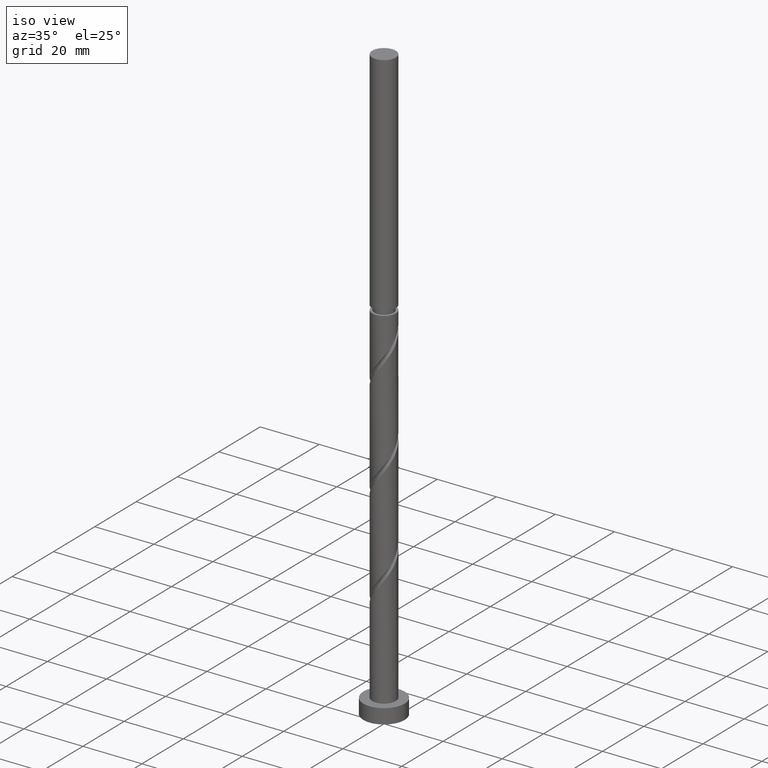
[diagram: clean part render]
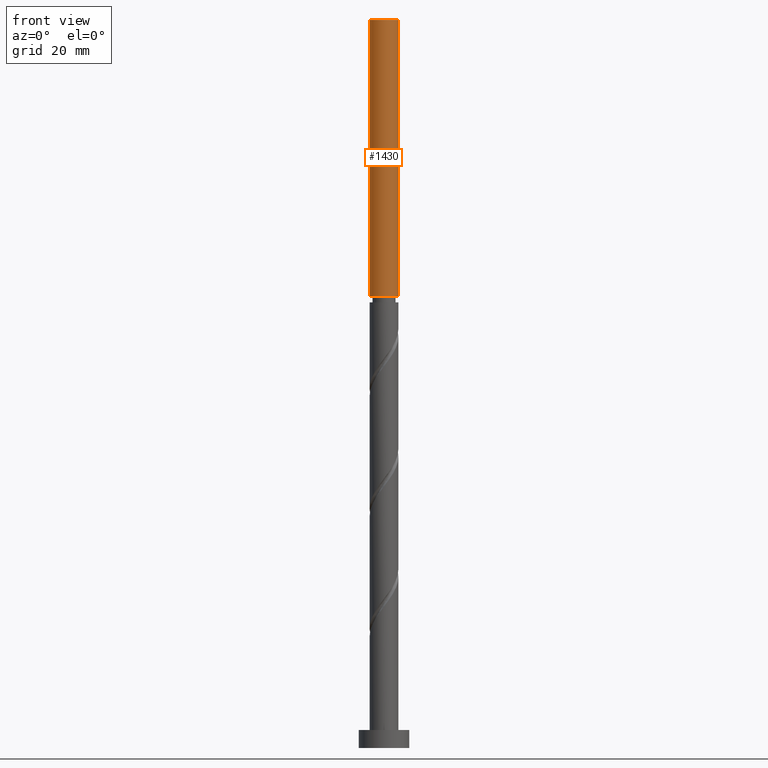
[diagram: tour spotlight — one face highlighted and labeled with its STEP entity id]
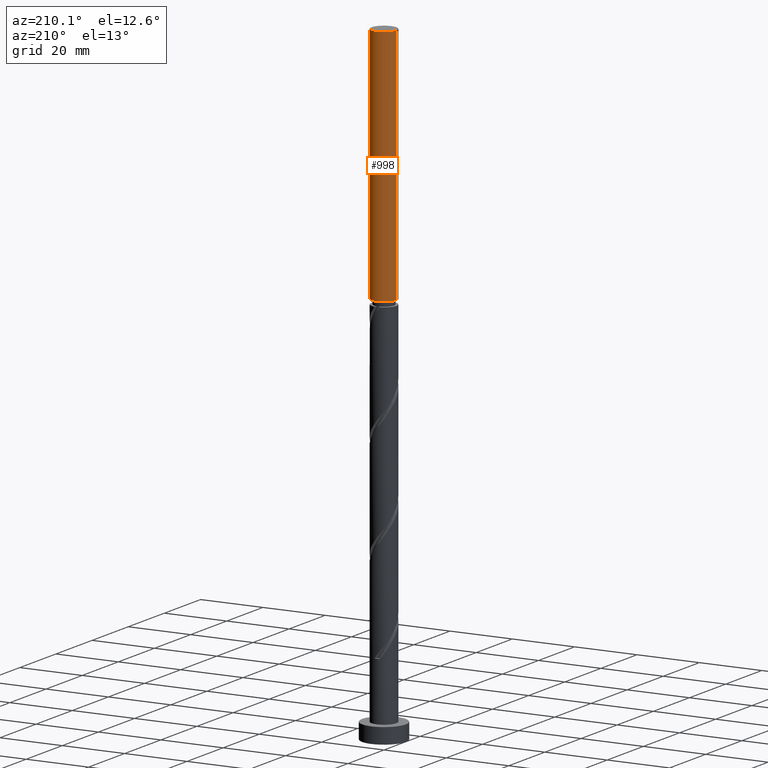
[diagram: tour spotlight — one face highlighted and labeled with its STEP entity id]
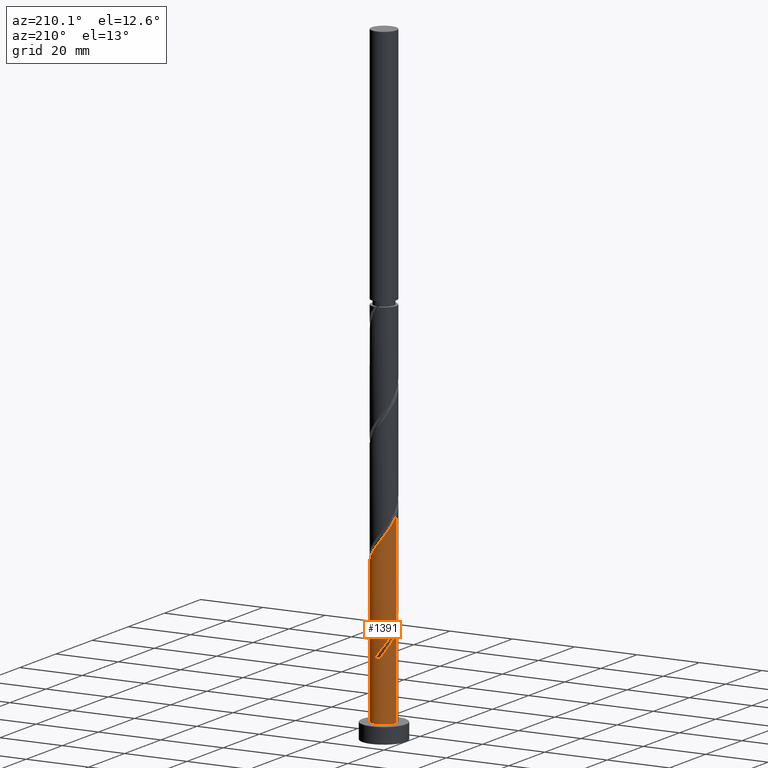
[diagram: tour spotlight — one face highlighted and labeled with its STEP entity id]
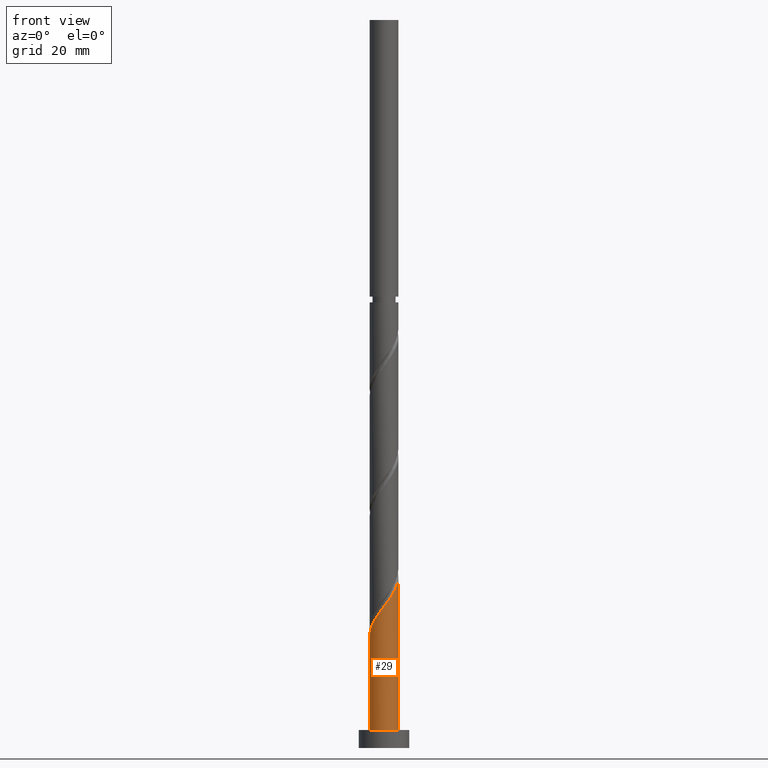
[diagram: tour spotlight — one face highlighted and labeled with its STEP entity id]
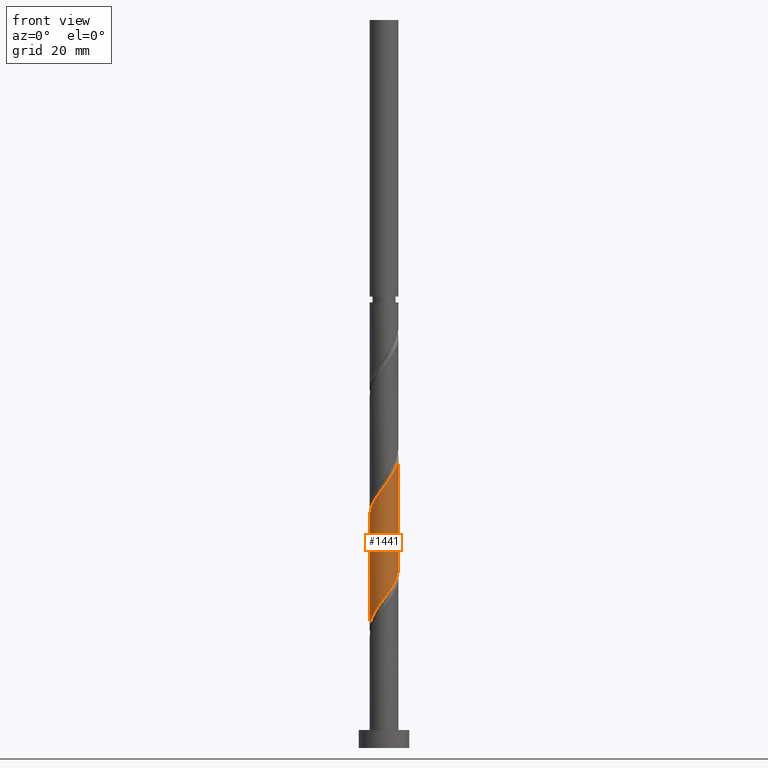
[diagram: tour spotlight — one face highlighted and labeled with its STEP entity id]
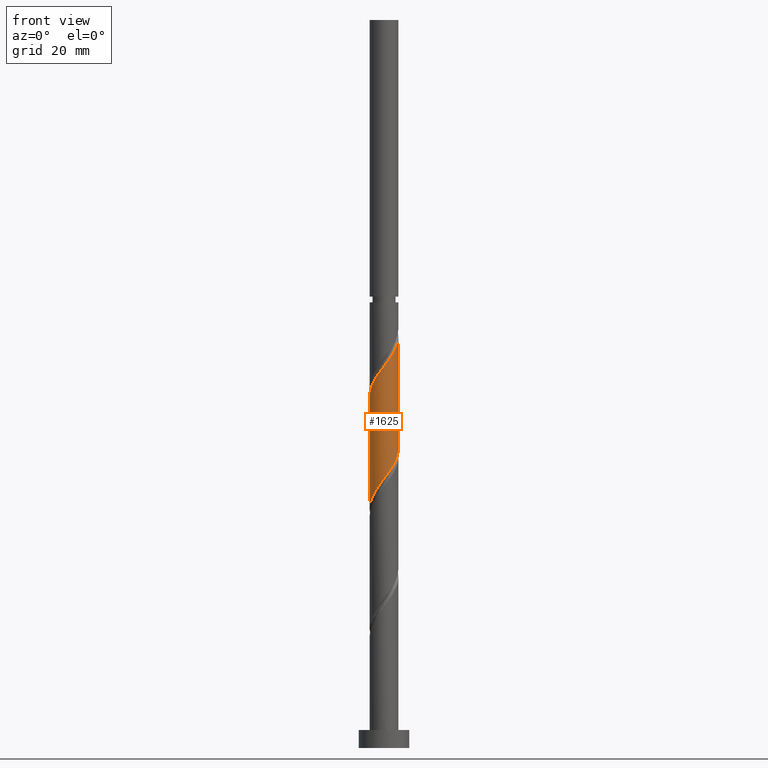
[diagram: tour spotlight — one face highlighted and labeled with its STEP entity id]
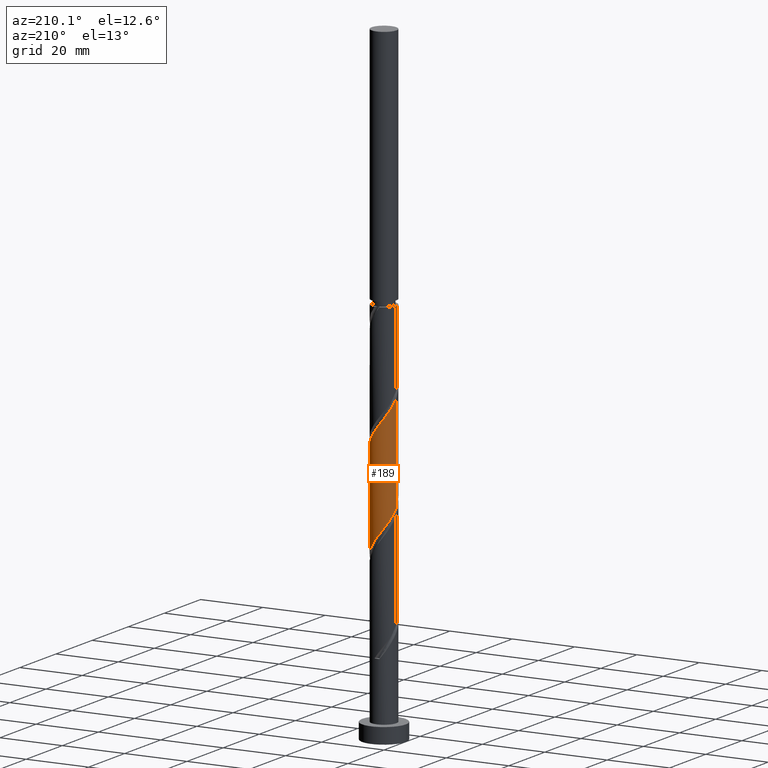
[diagram: tour spotlight — one face highlighted and labeled with its STEP entity id]
A machine part: a face-by-face anatomy tour. The part has 21 B-rep faces; the first image is the clean iso view, then the 7 largest visible faces are spotlighted one at a time (largest first), each with its STEP entity span.

Face 1 — front view, entity #1430. In plain terms, the highlighted cylindrical surface (edge-blend (fillet) strip) has radius 4 mm, axis along (-0, -0, -1).
Definition (entity closure, byte-faithful):
#90 = CARTESIAN_POINT ( 'NONE',  ( 0.000000000000000000, 0.000000000000000000, 125.2618713996753996 ) ) ;
#142 = DIRECTION ( 'NONE',  ( -1.000000000000000000, 0.000000000000000000, 0.000000000000000000 ) ) ;
#151 = FACE_OUTER_BOUND ( 'NONE', #1199, .T. ) ;
#186 = AXIS2_PLACEMENT_3D ( 'NONE', #1198, #431, #142 ) ;
#209 = DIRECTION ( 'NONE',  ( -0.000000000000000000, -0.000000000000000000, -1.000000000000000000 ) ) ;
#289 = VERTEX_POINT ( 'NONE', #1261 ) ;
#315 = VERTEX_POINT ( 'NONE', #1129 ) ;
#333 = VERTEX_POINT ( 'NONE', #765 ) ;
#431 = DIRECTION ( 'NONE',  ( -0.000000000000000000, -0.000000000000000000, -1.000000000000000000 ) ) ;
#444 = EDGE_CURVE ( 'NONE', #333, #1688, #1437, .T. ) ;
#560 = ORIENTED_EDGE ( 'NONE', *, *, #1315, .T. ) ;
#616 = ORIENTED_EDGE ( 'NONE', *, *, #444, .F. ) ;
#623 = CIRCLE ( 'NONE', #786, 4.000000000000000000 ) ;
#624 = CIRCLE ( 'NONE', #1595, 3.999999999999996447 ) ;
#756 = EDGE_CURVE ( 'NONE', #289, #333, #623, .T. ) ;
#765 = CARTESIAN_POINT ( 'NONE',  ( 4.000000000000000000, 4.898587196589412829E-16, 202.0000000000000000 ) ) ;
#786 = AXIS2_PLACEMENT_3D ( 'NONE', #1641, #1283, #1660 ) ;
#801 = DIRECTION ( 'NONE',  ( -0.000000000000000000, -0.000000000000000000, -1.000000000000000000 ) ) ;
#911 = DIRECTION ( 'NONE',  ( -0.000000000000000000, -0.000000000000000000, -1.000000000000000000 ) ) ;
#997 = ORIENTED_EDGE ( 'NONE', *, *, #1606, .F. ) ;
#1129 = CARTESIAN_POINT ( 'NONE',  ( -3.999999999999996447, 0.000000000000000000, 125.2618713996753996 ) ) ;
#1188 = LINE ( 'NONE', #1493, #1429 ) ;
#1198 = CARTESIAN_POINT ( 'NONE',  ( 0.000000000000000000, 0.000000000000000000, 202.0000000000000000 ) ) ;
#1199 = EDGE_LOOP ( 'NONE', ( #616, #1538, #560, #997 ) ) ;
#1218 = CYLINDRICAL_SURFACE ( 'NONE', #186, 4.000000000000000000 ) ;
#1261 = CARTESIAN_POINT ( 'NONE',  ( -4.000000000000000000, 0.000000000000000000, 202.0000000000000000 ) ) ;
#1283 = DIRECTION ( 'NONE',  ( 0.000000000000000000, 0.000000000000000000, 1.000000000000000000 ) ) ;
#1299 = DIRECTION ( 'NONE',  ( -1.000000000000000000, 0.000000000000000000, 0.000000000000000000 ) ) ;
#1315 = EDGE_CURVE ( 'NONE', #289, #315, #1188, .T. ) ;
#1324 = CARTESIAN_POINT ( 'NONE',  ( 4.000000000000000000, 4.898587196589412829E-16, 202.0000000000000000 ) ) ;
#1373 = VECTOR ( 'NONE', #911, 1000.000000000000000 ) ;
#1429 = VECTOR ( 'NONE', #801, 1000.000000000000000 ) ;
#1430 = ADVANCED_FACE ( 'NONE', ( #151 ), #1218, .T. ) ;
#1437 = LINE ( 'NONE', #1324, #1373 ) ;
#1493 = CARTESIAN_POINT ( 'NONE',  ( -4.000000000000000000, 0.000000000000000000, 202.0000000000000000 ) ) ;
#1538 = ORIENTED_EDGE ( 'NONE', *, *, #756, .F. ) ;
#1559 = CARTESIAN_POINT ( 'NONE',  ( 3.999999999999996447, 4.898587196589410857E-16, 125.2618713996753996 ) ) ;
#1595 = AXIS2_PLACEMENT_3D ( 'NONE', #90, #209, #1299 ) ;
#1606 = EDGE_CURVE ( 'NONE', #1688, #315, #624, .T. ) ;
#1641 = CARTESIAN_POINT ( 'NONE',  ( 0.000000000000000000, 0.000000000000000000, 202.0000000000000000 ) ) ;
#1660 = DIRECTION ( 'NONE',  ( 1.000000000000000000, 0.000000000000000000, 0.000000000000000000 ) ) ;
#1688 = VERTEX_POINT ( 'NONE', #1559 ) ;

Face 2 — auxiliary view, entity #998. In plain terms, the highlighted cylindrical surface (edge-blend (fillet) strip) has radius 4 mm, axis along (-0, -0, -1).
Definition (entity closure, byte-faithful):
#19 = AXIS2_PLACEMENT_3D ( 'NONE', #352, #492, #761 ) ;
#59 = CARTESIAN_POINT ( 'NONE',  ( 0.000000000000000000, 0.000000000000000000, 202.0000000000000000 ) ) ;
#62 = ORIENTED_EDGE ( 'NONE', *, *, #1555, .F. ) ;
#208 = EDGE_CURVE ( 'NONE', #333, #289, #243, .T. ) ;
#243 = CIRCLE ( 'NONE', #396, 4.000000000000000000 ) ;
#289 = VERTEX_POINT ( 'NONE', #1261 ) ;
#315 = VERTEX_POINT ( 'NONE', #1129 ) ;
#333 = VERTEX_POINT ( 'NONE', #765 ) ;
#352 = CARTESIAN_POINT ( 'NONE',  ( 0.000000000000000000, 0.000000000000000000, 202.0000000000000000 ) ) ;
#358 = DIRECTION ( 'NONE',  ( 0.000000000000000000, 0.000000000000000000, 1.000000000000000000 ) ) ;
#369 = DIRECTION ( 'NONE',  ( -1.000000000000000000, 0.000000000000000000, 0.000000000000000000 ) ) ;
#396 = AXIS2_PLACEMENT_3D ( 'NONE', #59, #358, #619 ) ;
#444 = EDGE_CURVE ( 'NONE', #333, #1688, #1437, .T. ) ;
#492 = DIRECTION ( 'NONE',  ( -0.000000000000000000, -0.000000000000000000, -1.000000000000000000 ) ) ;
#577 = CARTESIAN_POINT ( 'NONE',  ( 0.000000000000000000, 0.000000000000000000, 125.2618713996753996 ) ) ;
#599 = ORIENTED_EDGE ( 'NONE', *, *, #444, .T. ) ;
#619 = DIRECTION ( 'NONE',  ( 1.000000000000000000, 0.000000000000000000, 0.000000000000000000 ) ) ;
#640 = FACE_OUTER_BOUND ( 'NONE', #1122, .T. ) ;
#651 = AXIS2_PLACEMENT_3D ( 'NONE', #577, #1101, #369 ) ;
#698 = ORIENTED_EDGE ( 'NONE', *, *, #1315, .F. ) ;
#761 = DIRECTION ( 'NONE',  ( -1.000000000000000000, 0.000000000000000000, 0.000000000000000000 ) ) ;
#765 = CARTESIAN_POINT ( 'NONE',  ( 4.000000000000000000, 4.898587196589412829E-16, 202.0000000000000000 ) ) ;
#801 = DIRECTION ( 'NONE',  ( -0.000000000000000000, -0.000000000000000000, -1.000000000000000000 ) ) ;
#911 = DIRECTION ( 'NONE',  ( -0.000000000000000000, -0.000000000000000000, -1.000000000000000000 ) ) ;
#998 = ADVANCED_FACE ( 'NONE', ( #640 ), #1433, .T. ) ;
#1101 = DIRECTION ( 'NONE',  ( -0.000000000000000000, -0.000000000000000000, -1.000000000000000000 ) ) ;
#1122 = EDGE_LOOP ( 'NONE', ( #1679, #599, #62, #698 ) ) ;
#1129 = CARTESIAN_POINT ( 'NONE',  ( -3.999999999999996447, 0.000000000000000000, 125.2618713996753996 ) ) ;
#1188 = LINE ( 'NONE', #1493, #1429 ) ;
#1233 = CIRCLE ( 'NONE', #651, 3.999999999999996447 ) ;
#1261 = CARTESIAN_POINT ( 'NONE',  ( -4.000000000000000000, 0.000000000000000000, 202.0000000000000000 ) ) ;
#1315 = EDGE_CURVE ( 'NONE', #289, #315, #1188, .T. ) ;
#1324 = CARTESIAN_POINT ( 'NONE',  ( 4.000000000000000000, 4.898587196589412829E-16, 202.0000000000000000 ) ) ;
#1373 = VECTOR ( 'NONE', #911, 1000.000000000000000 ) ;
#1429 = VECTOR ( 'NONE', #801, 1000.000000000000000 ) ;
#1433 = CYLINDRICAL_SURFACE ( 'NONE', #19, 4.000000000000000000 ) ;
#1437 = LINE ( 'NONE', #1324, #1373 ) ;
#1493 = CARTESIAN_POINT ( 'NONE',  ( -4.000000000000000000, 0.000000000000000000, 202.0000000000000000 ) ) ;
#1555 = EDGE_CURVE ( 'NONE', #315, #1688, #1233, .T. ) ;
#1559 = CARTESIAN_POINT ( 'NONE',  ( 3.999999999999996447, 4.898587196589410857E-16, 125.2618713996753996 ) ) ;
#1679 = ORIENTED_EDGE ( 'NONE', *, *, #208, .F. ) ;
#1688 = VERTEX_POINT ( 'NONE', #1559 ) ;

Face 3 — auxiliary view, entity #1391. In plain terms, the highlighted cylindrical surface (edge-blend (fillet) strip) has radius 4 mm, axis along (-0, -0, -1).
Definition (entity closure, byte-faithful):
#3 = FACE_OUTER_BOUND ( 'NONE', #877, .T. ) ;
#14 = CARTESIAN_POINT ( 'NONE',  ( -2.254808073111004507, 3.345617825659332301, 59.07853806634208382 ) ) ;
#24 = CARTESIAN_POINT ( 'NONE',  ( 3.345617825659334521, 2.254808073111002287, 50.74520473300873391 ) ) ;
#30 = EDGE_CURVE ( 'NONE', #1075, #546, #830, .T. ) ;
#114 = CARTESIAN_POINT ( 'NONE',  ( -0.7959899496852951284, 3.920000000000007034, 23.66187139967540531 ) ) ;
#119 = CARTESIAN_POINT ( 'NONE',  ( 4.000000000000000000, 4.898587196589412829E-16, 202.0000000000000000 ) ) ;
#122 = CARTESIAN_POINT ( 'NONE',  ( -3.960099130553270452, 0.7713189730113427789, 63.24520473300874812 ) ) ;
#132 = ORIENTED_EDGE ( 'NONE', *, *, #613, .T. ) ;
#133 = EDGE_CURVE ( 'NONE', #1131, #1281, #134, .T. ) ;
#134 = LINE ( 'NONE', #1209, #1258 ) ;
#144 = CARTESIAN_POINT ( 'NONE',  ( -2.649347517584566436, 2.996824607992357503, 59.77298251078650537 ) ) ;
#161 = CARTESIAN_POINT ( 'NONE',  ( 1.769985991819538196, 3.625529984802036587, 53.52298251078653379 ) ) ;
#246 = CIRCLE ( 'NONE', #733, 4.000000000000000000 ) ;
#260 = CARTESIAN_POINT ( 'NONE',  ( -2.209008691072455566, 3.334708473430078701, 27.82853806634206961 ) ) ;
#270 = CARTESIAN_POINT ( 'NONE',  ( -1.769985991819534199, 3.625529984802032590, 27.13409362189763741 ) ) ;
#280 = DIRECTION ( 'NONE',  ( 0.000000000000000000, 0.000000000000000000, 1.000000000000000000 ) ) ;
#288 = DIRECTION ( 'NONE',  ( -1.000000000000000000, 0.000000000000000000, 0.000000000000000000 ) ) ;
#300 = CARTESIAN_POINT ( 'NONE',  ( -3.625529984802036587, 1.769985991819537086, 61.85631584411986950 ) ) ;
#368 = CARTESIAN_POINT ( 'NONE',  ( -3.792814557677651965, 1.270652482415439710, 29.21742695523097311 ) ) ;
#388 = CARTESIAN_POINT ( 'NONE',  ( 0.7959899496852964607, 3.920000000000000817, 23.66187139967540531 ) ) ;
#404 = CARTESIAN_POINT ( 'NONE',  ( -0.7959899496852951284, 3.920000000000007034, 23.66187139967540531 ) ) ;
#409 = CARTESIAN_POINT ( 'NONE',  ( -3.992446597741903691, 0.2457034069343204397, 30.60631584411984463 ) ) ;
#423 = DIRECTION ( 'NONE',  ( -0.000000000000000000, -0.000000000000000000, -1.000000000000000000 ) ) ;
#428 = CIRCLE ( 'NONE', #1402, 4.000000000000000000 ) ;
#429 = EDGE_CURVE ( 'NONE', #1420, #1131, #554, .T. ) ;
#432 = VERTEX_POINT ( 'NONE', #388 ) ;
#433 = CARTESIAN_POINT ( 'NONE',  ( -0.7959899496852949063, 3.920000000000007034, 56.99520473300874812 ) ) ;
#442 = CARTESIAN_POINT ( 'NONE',  ( 3.580411880364402055, 1.783437906669444573, 50.05076028856429105 ) ) ;
#461 = LINE ( 'NONE', #824, #1113 ) ;
#473 = ORIENTED_EDGE ( 'NONE', *, *, #1279, .T. ) ;
#546 = VERTEX_POINT ( 'NONE', #1214 ) ;
#547 = CARTESIAN_POINT ( 'NONE',  ( -0.2799121591426994016, 4.024794064930541815, 56.30076028856431236 ) ) ;
#549 = DIRECTION ( 'NONE',  ( 0.000000000000000000, 1.000000000000000000, -8.673617379884035472E-15 ) ) ;
#554 =( BOUNDED_CURVE ( )  B_SPLINE_CURVE ( 2, ( #114, #671, #1193, #656, #1737, #1043, #1060, #1161, #368, #1604, #409, #1475, #1584 ),
 .UNSPECIFIED., .F., .T. ) 
 B_SPLINE_CURVE_WITH_KNOTS ( ( 3, 2, 2, 2, 2, 2, 3 ),
 ( 0.000000000000000000, 0.01041666666666662966, 0.02083333333333337034, 0.03125000000000000000, 0.04166666666666662966, 0.05208333333333337034, 0.05453176698144628076 ),
 .UNSPECIFIED. ) 
 CURVE ( )  GEOMETRIC_REPRESENTATION_ITEM ( )  RATIONAL_B_SPLINE_CURVE ( ( 0.9090909090909189416, 0.9013135103398371983, 0.9090909090909189416, 0.9013135103398371983, 0.9090909090909189416, 0.9013135103398371983, 0.9090909090909189416, 0.9013135103398371983, 0.9090909090909189416, 0.9013135103398371983, 0.9090909090909189416, 0.9072628343904125536, 0.9062941362546390600 ) ) 
 REPRESENTATION_ITEM ( '' )  );
#564 = CARTESIAN_POINT ( 'NONE',  ( -4.000000000000004441, 0.1229678066307000051, 64.10180772310383190 ) ) ;
#571 = CARTESIAN_POINT ( 'NONE',  ( -2.996824607992351730, 2.649347517584563327, 29.21742695523097311 ) ) ;
#573 = CARTESIAN_POINT ( 'NONE',  ( 0.2457034069343229377, 3.992446597741903691, 55.60631584411983397 ) ) ;
#578 = ORIENTED_EDGE ( 'NONE', *, *, #1336, .F. ) ;
#582 = CARTESIAN_POINT ( 'NONE',  ( 2.209008691072460451, 3.334708473430081366, 52.82853806634207672 ) ) ;
#613 = EDGE_CURVE ( 'NONE', #1420, #432, #428, .T. ) ;
#615 = ORIENTED_EDGE ( 'NONE', *, *, #133, .F. ) ;
#656 = CARTESIAN_POINT ( 'NONE',  ( -2.254808073111004507, 3.345617825659332301, 25.74520473300874812 ) ) ;
#667 = CARTESIAN_POINT ( 'NONE',  ( 0.2799121591427038425, 4.024794064930537374, 24.35631584411986239 ) ) ;
#671 = CARTESIAN_POINT ( 'NONE',  ( -1.312067740227888857, 3.815205935069471810, 24.35631584411984818 ) ) ;
#685 = CARTESIAN_POINT ( 'NONE',  ( -1.312067740227888857, 3.815205935069471810, 57.68964917745318388 ) ) ;
#701 = CARTESIAN_POINT ( 'NONE',  ( 3.815205935069472698, 1.312067740227887747, 49.35631584411985529 ) ) ;
#724 = ORIENTED_EDGE ( 'NONE', *, *, #429, .F. ) ;
#733 = AXIS2_PLACEMENT_3D ( 'NONE', #1208, #280, #1085 ) ;
#736 = VERTEX_POINT ( 'NONE', #1591 ) ;
#809 = CYLINDRICAL_SURFACE ( 'NONE', #1533, 4.000000000000000000 ) ;
#819 = CARTESIAN_POINT ( 'NONE',  ( -3.580411880364395838, 1.783437906669445239, 30.60631584411984818 ) ) ;
#821 = CARTESIAN_POINT ( 'NONE',  ( 2.648031390325384482, 3.043886962058126588, 52.13409362189763385 ) ) ;
#824 = CARTESIAN_POINT ( 'NONE',  ( -4.000000000000000000, 0.000000000000000000, 202.0000000000000000 ) ) ;
#829 = DIRECTION ( 'NONE',  ( -0.000000000000000000, -0.000000000000000000, -1.000000000000000000 ) ) ;
#830 =( BOUNDED_CURVE ( )  B_SPLINE_CURVE ( 2, ( #831, #1066, #1366, #701, #442, #24, #1375, #821, #582, #161, #1231, #1619, #573, #547, #433, #685, #1097, #14, #144, #960, #1104, #300, #951, #122, #1220, #564, #1088 ),
 .UNSPECIFIED., .F., .T. ) 
 B_SPLINE_CURVE_WITH_KNOTS ( ( 3, 2, 2, 2, 2, 2, 2, 2, 2, 2, 2, 2, 2, 3 ),
 ( 0.1795317669814462946, 0.1875000000000000000, 0.1979166666666666297, 0.2083333333333333703, 0.2187500000000000000, 0.2291666666666666297, 0.2395833333333333703, 0.2500000000000000000, 0.2604166666666666297, 0.2708333333333333703, 0.2812500000000000000, 0.2916666666666666297, 0.3020833333333333703, 0.3045317669814462391 ),
 .UNSPECIFIED. ) 
 CURVE ( )  GEOMETRIC_REPRESENTATION_ITEM ( )  RATIONAL_B_SPLINE_CURVE ( ( 0.9062941362546390600, 0.9031415850403433643, 0.9090909090909189416, 0.9013135103398371983, 0.9090909090909189416, 0.9013135103398371983, 0.9090909090909189416, 0.9013135103398371983, 0.9090909090909189416, 0.9013135103398371983, 0.9090909090909189416, 0.9013135103398371983, 0.9090909090909189416, 0.9013135103398371983, 0.9090909090909189416, 0.9013135103398371983, 0.9090909090909189416, 0.9013135103398371983, 0.9090909090909189416, 0.9013135103398371983, 0.9090909090909189416, 0.9013135103398371983, 0.9090909090909189416, 0.9013135103398371983, 0.9090909090909189416, 0.9072628343904126647, 0.9062941362546391710 ) ) 
 REPRESENTATION_ITEM ( '' )  );
#831 = CARTESIAN_POINT ( 'NONE',  ( 4.000000000000004441, -1.525286013249257434E-15, 47.59830474446533799 ) ) ;
#877 = EDGE_LOOP ( 'NONE', ( #1400, #1673, #473, #615, #724, #132, #578, #1006 ) ) ;
#899 = CARTESIAN_POINT ( 'NONE',  ( -4.000000000000005329, -9.869497732789313506E-16, 30.93163807779867014 ) ) ;
#925 = CARTESIAN_POINT ( 'NONE',  ( -1.270652482415437046, 3.792814557677647525, 26.43964917745318388 ) ) ;
#941 = CARTESIAN_POINT ( 'NONE',  ( 0.000000000000000000, 0.000000000000000000, 23.66187139967543374 ) ) ;
#945 = EDGE_CURVE ( 'NONE', #546, #736, #461, .T. ) ;
#951 = CARTESIAN_POINT ( 'NONE',  ( -3.792814557677651965, 1.270652482415439710, 62.55076028856430526 ) ) ;
#960 = CARTESIAN_POINT ( 'NONE',  ( -3.043886962058129253, 2.648031390325382706, 60.46742695523098376 ) ) ;
#1006 = ORIENTED_EDGE ( 'NONE', *, *, #945, .F. ) ;
#1009 = DIRECTION ( 'NONE',  ( -0.000000000000000000, -0.000000000000000000, -1.000000000000000000 ) ) ;
#1043 = CARTESIAN_POINT ( 'NONE',  ( -3.043886962058129253, 2.648031390325382706, 27.13409362189763385 ) ) ;
#1055 = CARTESIAN_POINT ( 'NONE',  ( -4.000000000000001776, 0.4020151261036866153, 32.52534501902952968 ) ) ;
#1060 = CARTESIAN_POINT ( 'NONE',  ( -3.334708473430083142, 2.209008691072459118, 27.82853806634206961 ) ) ;
#1066 = CARTESIAN_POINT ( 'NONE',  ( 4.000000000000006217, 0.4020151261036799539, 48.13173111365460244 ) ) ;
#1072 = DIRECTION ( 'NONE',  ( 0.000000000000000000, -8.673617379884046516E-15, -1.000000000000000000 ) ) ;
#1075 = VERTEX_POINT ( 'NONE', #1579 ) ;
#1078 = CARTESIAN_POINT ( 'NONE',  ( -4.000000000000001776, 2.901034182062332243E-15, 33.05877138821880123 ) ) ;
#1085 = DIRECTION ( 'NONE',  ( 1.000000000000000000, 0.000000000000000000, 0.000000000000000000 ) ) ;
#1088 = CARTESIAN_POINT ( 'NONE',  ( -4.000000000000005329, -9.869497732789313506E-16, 64.26497141113199518 ) ) ;
#1097 = CARTESIAN_POINT ( 'NONE',  ( -1.783437906669446127, 3.580411880364401611, 58.38409362189761964 ) ) ;
#1104 = CARTESIAN_POINT ( 'NONE',  ( -3.334708473430083142, 2.209008691072459118, 61.16187139967540531 ) ) ;
#1113 = VECTOR ( 'NONE', #1009, 1000.000000000000000 ) ;
#1124 = DIRECTION ( 'NONE',  ( -0.000000000000000000, -0.000000000000000000, -1.000000000000000000 ) ) ;
#1131 = VERTEX_POINT ( 'NONE', #899 ) ;
#1161 = CARTESIAN_POINT ( 'NONE',  ( -3.625529984802036587, 1.769985991819537086, 28.52298251078651248 ) ) ;
#1193 = CARTESIAN_POINT ( 'NONE',  ( -1.783437906669446127, 3.580411880364401611, 25.05076028856428749 ) ) ;
#1208 = CARTESIAN_POINT ( 'NONE',  ( 0.000000000000000000, 0.000000000000000000, 5.000000000000000000 ) ) ;
#1209 = CARTESIAN_POINT ( 'NONE',  ( -4.000000000000000000, 0.000000000000000000, 202.0000000000000000 ) ) ;
#1214 = CARTESIAN_POINT ( 'NONE',  ( -4.000000000000005329, -9.869497732789313506E-16, 64.26497141113199518 ) ) ;
#1220 = CARTESIAN_POINT ( 'NONE',  ( -3.992446597741903691, 0.2457034069343204397, 63.93964917745316257 ) ) ;
#1228 = LINE ( 'NONE', #119, #1288 ) ;
#1231 = CARTESIAN_POINT ( 'NONE',  ( 1.270652482415441265, 3.792814557677650633, 54.21742695523096955 ) ) ;
#1258 = VECTOR ( 'NONE', #1124, 1000.000000000000000 ) ;
#1279 = EDGE_CURVE ( 'NONE', #1545, #1281, #246, .T. ) ;
#1281 = VERTEX_POINT ( 'NONE', #1499 ) ;
#1288 = VECTOR ( 'NONE', #829, 1000.000000000000000 ) ;
#1336 = EDGE_CURVE ( 'NONE', #736, #432, #1442, .T. ) ;
#1339 = CARTESIAN_POINT ( 'NONE',  ( -0.2457034069343186078, 3.992446597741900582, 25.05076028856429460 ) ) ;
#1358 = CARTESIAN_POINT ( 'NONE',  ( -3.345617825659328748, 2.254808073111002287, 29.91187139967541953 ) ) ;
#1360 = EDGE_CURVE ( 'NONE', #1075, #1545, #1228, .T. ) ;
#1365 = CARTESIAN_POINT ( 'NONE',  ( 0.000000000000000000, 0.000000000000000000, 202.0000000000000000 ) ) ;
#1366 = CARTESIAN_POINT ( 'NONE',  ( 3.920000000000007034, 0.7959899496852951284, 48.66187139967540531 ) ) ;
#1375 = CARTESIAN_POINT ( 'NONE',  ( 2.996824607992358391, 2.649347517584564216, 51.43964917745318388 ) ) ;
#1391 = ADVANCED_FACE ( 'NONE', ( #3 ), #809, .T. ) ;
#1400 = ORIENTED_EDGE ( 'NONE', *, *, #30, .F. ) ;
#1402 = AXIS2_PLACEMENT_3D ( 'NONE', #941, #1072, #549 ) ;
#1420 = VERTEX_POINT ( 'NONE', #404 ) ;
#1442 =( BOUNDED_CURVE ( )  B_SPLINE_CURVE ( 2, ( #1078, #1055, #1628, #1470, #819, #1358, #571, #1487, #260, #270, #925, #1617, #1339, #667, #1733 ),
 .UNSPECIFIED., .F., .T. ) 
 B_SPLINE_CURVE_WITH_KNOTS ( ( 3, 2, 2, 2, 2, 2, 2, 3 ),
 ( 0.9295317669814463502, 0.9375000000000000000, 0.9479166666666666297, 0.9583333333333333703, 0.9687500000000000000, 0.9791666666666666297, 0.9895833333333333703, 1.000000000000000000 ),
 .UNSPECIFIED. ) 
 CURVE ( )  GEOMETRIC_REPRESENTATION_ITEM ( )  RATIONAL_B_SPLINE_CURVE ( ( 0.9062941362546333979, 0.9031415850403377021, 0.9090909090909131685, 0.9013135103398315362, 0.9090909090909131685, 0.9013135103398315362, 0.9090909090909131685, 0.9013135103398315362, 0.9090909090909131685, 0.9013135103398315362, 0.9090909090909131685, 0.9013135103398315362, 0.9090909090909131685, 0.9013135103398315362, 0.9090909090909131685 ) ) 
 REPRESENTATION_ITEM ( '' )  );
#1470 = CARTESIAN_POINT ( 'NONE',  ( -3.815205935069466037, 1.312067740227888191, 31.30076028856430170 ) ) ;
#1475 = CARTESIAN_POINT ( 'NONE',  ( -4.000000000000005329, 0.1229678066306979789, 30.76847438977052462 ) ) ;
#1487 = CARTESIAN_POINT ( 'NONE',  ( -2.648031390325378265, 3.043886962058125700, 28.52298251078651958 ) ) ;
#1499 = CARTESIAN_POINT ( 'NONE',  ( -4.000000000000000000, 0.000000000000000000, 5.000000000000000000 ) ) ;
#1533 = AXIS2_PLACEMENT_3D ( 'NONE', #1365, #423, #288 ) ;
#1545 = VERTEX_POINT ( 'NONE', #1655 ) ;
#1579 = CARTESIAN_POINT ( 'NONE',  ( 4.000000000000004441, -1.525286013249257434E-15, 47.59830474446533799 ) ) ;
#1584 = CARTESIAN_POINT ( 'NONE',  ( -4.000000000000005329, -9.869497732789313506E-16, 30.93163807779867014 ) ) ;
#1591 = CARTESIAN_POINT ( 'NONE',  ( -4.000000000000001776, 2.901034182062332243E-15, 33.05877138821880123 ) ) ;
#1604 = CARTESIAN_POINT ( 'NONE',  ( -3.960099130553270452, 0.7713189730113427789, 29.91187139967541242 ) ) ;
#1617 = CARTESIAN_POINT ( 'NONE',  ( -0.7713189730113413356, 3.960099130553266011, 25.74520473300875523 ) ) ;
#1619 = CARTESIAN_POINT ( 'NONE',  ( 0.7713189730113451104, 3.960099130553269564, 54.91187139967541242 ) ) ;
#1628 = CARTESIAN_POINT ( 'NONE',  ( -3.920000000000000817, 0.7959899496852955725, 31.99520473300873746 ) ) ;
#1655 = CARTESIAN_POINT ( 'NONE',  ( 4.000000000000000000, 4.898587196589412829E-16, 5.000000000000000000 ) ) ;
#1673 = ORIENTED_EDGE ( 'NONE', *, *, #1360, .T. ) ;
#1733 = CARTESIAN_POINT ( 'NONE',  ( 0.7959899496852964607, 3.920000000000000817, 23.66187139967540531 ) ) ;
#1737 = CARTESIAN_POINT ( 'NONE',  ( -2.649347517584566436, 2.996824607992357503, 26.43964917745319099 ) ) ;

Face 4 — front view, entity #29. In plain terms, the highlighted cylindrical surface (edge-blend (fillet) strip) has radius 4 mm, axis along (-0, -0, -1).
Definition (entity closure, byte-faithful):
#29 = ADVANCED_FACE ( 'NONE', ( #975 ), #684, .T. ) ;
#66 = CARTESIAN_POINT ( 'NONE',  ( -1.769985991819538196, -3.625529984802036587, 36.85631584411985529 ) ) ;
#82 = CARTESIAN_POINT ( 'NONE',  ( -3.920000000000007034, -0.7959899496852957945, 31.99520473300874457 ) ) ;
#119 = CARTESIAN_POINT ( 'NONE',  ( 4.000000000000000000, 4.898587196589412829E-16, 202.0000000000000000 ) ) ;
#133 = EDGE_CURVE ( 'NONE', #1131, #1281, #134, .T. ) ;
#134 = LINE ( 'NONE', #1209, #1258 ) ;
#201 = CARTESIAN_POINT ( 'NONE',  ( 3.334708473430080922, -2.209008691072460895, 44.49520473300874812 ) ) ;
#230 = CARTESIAN_POINT ( 'NONE',  ( 4.000000000000005329, -0.1229678066306997691, 47.43514105643719603 ) ) ;
#238 = CARTESIAN_POINT ( 'NONE',  ( 4.000000000000004441, -1.525286013249257434E-15, 47.59830474446533799 ) ) ;
#410 = EDGE_LOOP ( 'NONE', ( #606, #1605, #759, #622 ) ) ;
#424 = DIRECTION ( 'NONE',  ( -1.000000000000000000, 0.000000000000000000, 0.000000000000000000 ) ) ;
#483 = AXIS2_PLACEMENT_3D ( 'NONE', #1632, #1385, #1510 ) ;
#489 = CARTESIAN_POINT ( 'NONE',  ( 1.312067740227888191, -3.815205935069472698, 41.02298251078652669 ) ) ;
#508 = CARTESIAN_POINT ( 'NONE',  ( -2.209008691072459563, -3.334708473430082698, 36.16187139967541242 ) ) ;
#511 = AXIS2_PLACEMENT_3D ( 'NONE', #1382, #1743, #424 ) ;
#517 = CARTESIAN_POINT ( 'NONE',  ( -3.580411880364401611, -1.783437906669445683, 33.38409362189762675 ) ) ;
#606 = ORIENTED_EDGE ( 'NONE', *, *, #1360, .F. ) ;
#609 =( BOUNDED_CURVE ( )  B_SPLINE_CURVE ( 2, ( #1413, #766, #82, #1169, #517, #1035, #882, #783, #508, #66, #1707, #657, #637, #876, #1449, #489, #1014, #891, #1549, #1577, #201, #1027, #897, #1280, #1438, #230, #238 ),
 .UNSPECIFIED., .F., .F. ) 
 B_SPLINE_CURVE_WITH_KNOTS ( ( 3, 2, 2, 2, 2, 2, 2, 2, 2, 2, 2, 2, 2, 3 ),
 ( 0.05453176698144628076, 0.06250000000000000000, 0.07291666666666662966, 0.08333333333333337034, 0.09375000000000000000, 0.1041666666666666297, 0.1145833333333333703, 0.1250000000000000000, 0.1354166666666666297, 0.1458333333333333703, 0.1562500000000000000, 0.1666666666666666297, 0.1770833333333333703, 0.1795317669814462946 ),
 .UNSPECIFIED. ) 
 CURVE ( )  GEOMETRIC_REPRESENTATION_ITEM ( )  RATIONAL_B_SPLINE_CURVE ( ( 0.9062941362546390600, 0.9031415850403433643, 0.9090909090909189416, 0.9013135103398371983, 0.9090909090909189416, 0.9013135103398371983, 0.9090909090909189416, 0.9013135103398371983, 0.9090909090909189416, 0.9013135103398371983, 0.9090909090909189416, 0.9013135103398371983, 0.9090909090909189416, 0.9013135103398371983, 0.9090909090909189416, 0.9013135103398371983, 0.9090909090909189416, 0.9013135103398371983, 0.9090909090909189416, 0.9013135103398371983, 0.9090909090909189416, 0.9013135103398371983, 0.9090909090909189416, 0.9013135103398371983, 0.9090909090909189416, 0.9072628343904125536, 0.9062941362546390600 ) ) 
 REPRESENTATION_ITEM ( '' )  );
#622 = ORIENTED_EDGE ( 'NONE', *, *, #789, .T. ) ;
#637 = CARTESIAN_POINT ( 'NONE',  ( -0.2457034069343206062, -3.992446597741903691, 38.93964917745316967 ) ) ;
#657 = CARTESIAN_POINT ( 'NONE',  ( -0.7713189730113430009, -3.960099130553270452, 38.24520473300874812 ) ) ;
#684 = CYLINDRICAL_SURFACE ( 'NONE', #511, 4.000000000000000000 ) ;
#759 = ORIENTED_EDGE ( 'NONE', *, *, #133, .T. ) ;
#766 = CARTESIAN_POINT ( 'NONE',  ( -4.000000000000007105, -0.4020151261036818968, 31.46506444698794525 ) ) ;
#783 = CARTESIAN_POINT ( 'NONE',  ( -2.648031390325383150, -3.043886962058128365, 35.46742695523096245 ) ) ;
#789 = EDGE_CURVE ( 'NONE', #1281, #1545, #1626, .T. ) ;
#829 = DIRECTION ( 'NONE',  ( -0.000000000000000000, -0.000000000000000000, -1.000000000000000000 ) ) ;
#876 = CARTESIAN_POINT ( 'NONE',  ( 0.2799121591427017886, -4.024794064930541815, 39.63409362189762675 ) ) ;
#882 = CARTESIAN_POINT ( 'NONE',  ( -2.996824607992357503, -2.649347517584565548, 34.77298251078651958 ) ) ;
#891 = CARTESIAN_POINT ( 'NONE',  ( 2.254808073111002287, -3.345617825659334077, 42.41187139967541242 ) ) ;
#897 = CARTESIAN_POINT ( 'NONE',  ( 3.792814557677651521, -1.270652482415441265, 45.88409362189763385 ) ) ;
#899 = CARTESIAN_POINT ( 'NONE',  ( -4.000000000000005329, -9.869497732789313506E-16, 30.93163807779867014 ) ) ;
#975 = FACE_OUTER_BOUND ( 'NONE', #410, .T. ) ;
#1014 = CARTESIAN_POINT ( 'NONE',  ( 1.783437906669444795, -3.580411880364402055, 41.71742695523096245 ) ) ;
#1027 = CARTESIAN_POINT ( 'NONE',  ( 3.625529984802036587, -1.769985991819538196, 45.18964917745320520 ) ) ;
#1035 = CARTESIAN_POINT ( 'NONE',  ( -3.345617825659333189, -2.254808073111003619, 34.07853806634208382 ) ) ;
#1075 = VERTEX_POINT ( 'NONE', #1579 ) ;
#1124 = DIRECTION ( 'NONE',  ( -0.000000000000000000, -0.000000000000000000, -1.000000000000000000 ) ) ;
#1131 = VERTEX_POINT ( 'NONE', #899 ) ;
#1169 = CARTESIAN_POINT ( 'NONE',  ( -3.815205935069472698, -1.312067740227888191, 32.68964917745317678 ) ) ;
#1209 = CARTESIAN_POINT ( 'NONE',  ( -4.000000000000000000, 0.000000000000000000, 202.0000000000000000 ) ) ;
#1228 = LINE ( 'NONE', #119, #1288 ) ;
#1258 = VECTOR ( 'NONE', #1124, 1000.000000000000000 ) ;
#1280 = CARTESIAN_POINT ( 'NONE',  ( 3.960099130553269564, -0.7713189730113449993, 46.57853806634208382 ) ) ;
#1281 = VERTEX_POINT ( 'NONE', #1499 ) ;
#1288 = VECTOR ( 'NONE', #829, 1000.000000000000000 ) ;
#1360 = EDGE_CURVE ( 'NONE', #1075, #1545, #1228, .T. ) ;
#1382 = CARTESIAN_POINT ( 'NONE',  ( 0.000000000000000000, 0.000000000000000000, 202.0000000000000000 ) ) ;
#1385 = DIRECTION ( 'NONE',  ( 0.000000000000000000, 0.000000000000000000, 1.000000000000000000 ) ) ;
#1413 = CARTESIAN_POINT ( 'NONE',  ( -4.000000000000005329, -9.869497732789313506E-16, 30.93163807779867014 ) ) ;
#1438 = CARTESIAN_POINT ( 'NONE',  ( 3.992446597741903691, -0.2457034069343227156, 47.27298251078651248 ) ) ;
#1449 = CARTESIAN_POINT ( 'NONE',  ( 0.7959899496852953504, -3.920000000000007034, 40.32853806634208382 ) ) ;
#1499 = CARTESIAN_POINT ( 'NONE',  ( -4.000000000000000000, 0.000000000000000000, 5.000000000000000000 ) ) ;
#1510 = DIRECTION ( 'NONE',  ( 1.000000000000000000, 0.000000000000000000, 0.000000000000000000 ) ) ;
#1545 = VERTEX_POINT ( 'NONE', #1655 ) ;
#1549 = CARTESIAN_POINT ( 'NONE',  ( 2.649347517584565548, -2.996824607992357503, 43.10631584411984818 ) ) ;
#1577 = CARTESIAN_POINT ( 'NONE',  ( 3.043886962058128365, -2.648031390325383150, 43.80076028856429105 ) ) ;
#1579 = CARTESIAN_POINT ( 'NONE',  ( 4.000000000000004441, -1.525286013249257434E-15, 47.59830474446533799 ) ) ;
#1605 = ORIENTED_EDGE ( 'NONE', *, *, #1706, .F. ) ;
#1626 = CIRCLE ( 'NONE', #483, 4.000000000000000000 ) ;
#1632 = CARTESIAN_POINT ( 'NONE',  ( 0.000000000000000000, 0.000000000000000000, 5.000000000000000000 ) ) ;
#1655 = CARTESIAN_POINT ( 'NONE',  ( 4.000000000000000000, 4.898587196589412829E-16, 5.000000000000000000 ) ) ;
#1706 = EDGE_CURVE ( 'NONE', #1131, #1075, #609, .T. ) ;
#1707 = CARTESIAN_POINT ( 'NONE',  ( -1.270652482415440598, -3.792814557677651521, 37.55076028856429105 ) ) ;
#1743 = DIRECTION ( 'NONE',  ( -0.000000000000000000, -0.000000000000000000, -1.000000000000000000 ) ) ;

Face 5 — front view, entity #1441. In plain terms, the highlighted cylindrical surface (edge-blend (fillet) strip) has radius 4 mm, axis along (-0, -0, -1).
Definition (entity closure, byte-faithful):
#11 = CYLINDRICAL_SURFACE ( 'NONE', #1684, 4.000000000000000000 ) ;
#16 = CARTESIAN_POINT ( 'NONE',  ( -3.960099130553266011, -0.7713189730113401144, 34.07853806634207672 ) ) ;
#26 = CARTESIAN_POINT ( 'NONE',  ( 0.2457034069343168592, -3.992446597741900582, 41.71742695523096245 ) ) ;
#42 = CARTESIAN_POINT ( 'NONE',  ( 3.580411880364395394, -1.783437906669447459, 47.27298251078651248 ) ) ;
#46 =( BOUNDED_CURVE ( )  B_SPLINE_CURVE ( 2, ( #1621, #879, #70, #1250, #42, #1080, #426, #1099, #445, #302, #452, #704, #26, #593, #1542, #154, #283, #835, #1361, #1652, #1416, #146, #844, #16, #953, #1489, #1234 ),
 .UNSPECIFIED., .F., .T. ) 
 B_SPLINE_CURVE_WITH_KNOTS ( ( 3, 2, 2, 2, 2, 2, 2, 2, 2, 2, 2, 2, 2, 3 ),
 ( 0.8045317669814464612, 0.8125000000000000000, 0.8229166666666666297, 0.8333333333333333703, 0.8437500000000000000, 0.8541666666666666297, 0.8645833333333333703, 0.8750000000000000000, 0.8854166666666666297, 0.8958333333333333703, 0.9062500000000000000, 0.9166666666666666297, 0.9270833333333333703, 0.9295317669814463502 ),
 .UNSPECIFIED. ) 
 CURVE ( )  GEOMETRIC_REPRESENTATION_ITEM ( )  RATIONAL_B_SPLINE_CURVE ( ( 0.9062941362546332869, 0.9031415850403378132, 0.9090909090909131685, 0.9013135103398315362, 0.9090909090909131685, 0.9013135103398315362, 0.9090909090909131685, 0.9013135103398315362, 0.9090909090909131685, 0.9013135103398315362, 0.9090909090909131685, 0.9013135103398315362, 0.9090909090909131685, 0.9013135103398315362, 0.9090909090909131685, 0.9013135103398315362, 0.9090909090909131685, 0.9013135103398315362, 0.9090909090909131685, 0.9013135103398315362, 0.9090909090909131685, 0.9013135103398315362, 0.9090909090909131685, 0.9013135103398315362, 0.9090909090909131685, 0.9072628343904068915, 0.9062941362546333979 ) ) 
 REPRESENTATION_ITEM ( '' )  );
#54 = VERTEX_POINT ( 'NONE', #1480 ) ;
#70 = CARTESIAN_POINT ( 'NONE',  ( 3.920000000000000817, -0.7959899496852961276, 48.66187139967541953 ) ) ;
#72 = ORIENTED_EDGE ( 'NONE', *, *, #945, .T. ) ;
#98 = CARTESIAN_POINT ( 'NONE',  ( 2.254808073111002287, -3.345617825659334077, 75.74520473300873391 ) ) ;
#107 = EDGE_CURVE ( 'NONE', #54, #607, #1341, .T. ) ;
#113 = CARTESIAN_POINT ( 'NONE',  ( -3.580411880364401611, -1.783437906669445683, 66.71742695523096245 ) ) ;
#131 = DIRECTION ( 'NONE',  ( -0.000000000000000000, -0.000000000000000000, -1.000000000000000000 ) ) ;
#138 = CARTESIAN_POINT ( 'NONE',  ( -2.209008691072459563, -3.334708473430082698, 69.49520473300873391 ) ) ;
#146 = CARTESIAN_POINT ( 'NONE',  ( -3.625529984802032590, -1.769985991819532645, 35.46742695523097666 ) ) ;
#154 = CARTESIAN_POINT ( 'NONE',  ( -1.312067740227888635, -3.815205935069466037, 39.63409362189764806 ) ) ;
#244 = CARTESIAN_POINT ( 'NONE',  ( 3.992446597741903691, -0.2457034069343227156, 80.60631584411984818 ) ) ;
#253 = CARTESIAN_POINT ( 'NONE',  ( 1.312067740227888191, -3.815205935069472698, 74.35631584411986239 ) ) ;
#264 = CARTESIAN_POINT ( 'NONE',  ( -1.769985991819538196, -3.625529984802036587, 70.18964917745319099 ) ) ;
#271 = CARTESIAN_POINT ( 'NONE',  ( 4.000000000000000000, 4.898587196589412829E-16, 202.0000000000000000 ) ) ;
#283 = CARTESIAN_POINT ( 'NONE',  ( -1.783437906669445239, -3.580411880364395838, 38.93964917745316967 ) ) ;
#302 = CARTESIAN_POINT ( 'NONE',  ( 1.769985991819532645, -3.625529984802032590, 43.80076028856431236 ) ) ;
#387 = CARTESIAN_POINT ( 'NONE',  ( 3.960099130553269564, -0.7713189730113449993, 79.91187139967541953 ) ) ;
#397 = CARTESIAN_POINT ( 'NONE',  ( -3.920000000000007034, -0.7959899496852957945, 65.32853806634206251 ) ) ;
#419 = CARTESIAN_POINT ( 'NONE',  ( -3.815205935069472698, -1.312067740227888191, 66.02298251078653379 ) ) ;
#426 = CARTESIAN_POINT ( 'NONE',  ( 2.996824607992351286, -2.649347517584564660, 45.88409362189764806 ) ) ;
#445 = CARTESIAN_POINT ( 'NONE',  ( 2.209008691072452901, -3.334708473430079589, 44.49520473300874812 ) ) ;
#452 = CARTESIAN_POINT ( 'NONE',  ( 1.270652482415436157, -3.792814557677648413, 43.10631584411984818 ) ) ;
#461 = LINE ( 'NONE', #824, #1113 ) ;
#535 = CARTESIAN_POINT ( 'NONE',  ( 0.000000000000000000, 0.000000000000000000, 202.0000000000000000 ) ) ;
#546 = VERTEX_POINT ( 'NONE', #1214 ) ;
#559 = CARTESIAN_POINT ( 'NONE',  ( 0.2799121591427017886, -4.024794064930541815, 72.96742695523096245 ) ) ;
#593 = CARTESIAN_POINT ( 'NONE',  ( -0.2799121591427050082, -4.024794064930537374, 41.02298251078652669 ) ) ;
#607 = VERTEX_POINT ( 'NONE', #930 ) ;
#670 = CARTESIAN_POINT ( 'NONE',  ( 2.649347517584565548, -2.996824607992357503, 76.43964917745317678 ) ) ;
#688 = CARTESIAN_POINT ( 'NONE',  ( -1.270652482415440598, -3.792814557677651521, 70.88409362189759122 ) ) ;
#691 = FACE_OUTER_BOUND ( 'NONE', #849, .T. ) ;
#704 = CARTESIAN_POINT ( 'NONE',  ( 0.7713189730113390041, -3.960099130553266011, 42.41187139967540531 ) ) ;
#720 = CARTESIAN_POINT ( 'NONE',  ( 4.000000000000004441, -0.1229678066307025308, 80.76847438977051752 ) ) ;
#736 = VERTEX_POINT ( 'NONE', #1591 ) ;
#748 = EDGE_CURVE ( 'NONE', #546, #54, #1379, .T. ) ;
#781 = CARTESIAN_POINT ( 'NONE',  ( -2.648031390325383150, -3.043886962058128365, 68.80076028856431947 ) ) ;
#804 = CARTESIAN_POINT ( 'NONE',  ( -4.000000000000007994, -0.4020151261036798429, 64.79839778032128095 ) ) ;
#824 = CARTESIAN_POINT ( 'NONE',  ( -4.000000000000000000, 0.000000000000000000, 202.0000000000000000 ) ) ;
#835 = CARTESIAN_POINT ( 'NONE',  ( -2.254808073111002731, -3.345617825659328748, 38.24520473300876233 ) ) ;
#844 = CARTESIAN_POINT ( 'NONE',  ( -3.792814557677647525, -1.270652482415436602, 34.77298251078651248 ) ) ;
#849 = EDGE_LOOP ( 'NONE', ( #1698, #1219, #72, #1675 ) ) ;
#879 = CARTESIAN_POINT ( 'NONE',  ( 4.000000000000000000, -0.4020151261036925550, 49.19201168569620819 ) ) ;
#889 = EDGE_CURVE ( 'NONE', #607, #736, #46, .T. ) ;
#910 = CARTESIAN_POINT ( 'NONE',  ( 3.043886962058128365, -2.648031390325383150, 77.13409362189764806 ) ) ;
#930 = CARTESIAN_POINT ( 'NONE',  ( 4.000000000000001776, -3.992660446446611942E-15, 49.72543805488546553 ) ) ;
#945 = EDGE_CURVE ( 'NONE', #546, #736, #461, .T. ) ;
#953 = CARTESIAN_POINT ( 'NONE',  ( -3.992446597741900582, -0.2457034069343181637, 33.38409362189762675 ) ) ;
#957 = DIRECTION ( 'NONE',  ( -1.000000000000000000, 0.000000000000000000, 0.000000000000000000 ) ) ;
#1009 = DIRECTION ( 'NONE',  ( -0.000000000000000000, -0.000000000000000000, -1.000000000000000000 ) ) ;
#1080 = CARTESIAN_POINT ( 'NONE',  ( 3.345617825659326972, -2.254808073111004951, 46.57853806634208382 ) ) ;
#1099 = CARTESIAN_POINT ( 'NONE',  ( 2.648031390325376933, -3.043886962058127033, 45.18964917745321230 ) ) ;
#1113 = VECTOR ( 'NONE', #1009, 1000.000000000000000 ) ;
#1213 = CARTESIAN_POINT ( 'NONE',  ( -0.2457034069343206062, -3.992446597741903691, 72.27298251078649116 ) ) ;
#1214 = CARTESIAN_POINT ( 'NONE',  ( -4.000000000000005329, -9.869497732789313506E-16, 64.26497141113199518 ) ) ;
#1219 = ORIENTED_EDGE ( 'NONE', *, *, #748, .F. ) ;
#1234 = CARTESIAN_POINT ( 'NONE',  ( -4.000000000000001776, 2.901034182062332243E-15, 33.05877138821880123 ) ) ;
#1250 = CARTESIAN_POINT ( 'NONE',  ( 3.815205935069465593, -1.312067740227890855, 47.96742695523096245 ) ) ;
#1341 = LINE ( 'NONE', #271, #1506 ) ;
#1344 = CARTESIAN_POINT ( 'NONE',  ( 1.783437906669444795, -3.580411880364402055, 75.05076028856427683 ) ) ;
#1351 = DIRECTION ( 'NONE',  ( -0.000000000000000000, -0.000000000000000000, -1.000000000000000000 ) ) ;
#1354 = CARTESIAN_POINT ( 'NONE',  ( -3.345617825659333189, -2.254808073111003619, 67.41187139967540531 ) ) ;
#1361 = CARTESIAN_POINT ( 'NONE',  ( -2.649347517584564216, -2.996824607992351286, 37.55076028856430526 ) ) ;
#1369 = CARTESIAN_POINT ( 'NONE',  ( 4.000000000000004441, -1.525286013249257434E-15, 80.93163807779866659 ) ) ;
#1379 =( BOUNDED_CURVE ( )  B_SPLINE_CURVE ( 2, ( #1482, #804, #397, #419, #113, #1354, #1575, #781, #138, #264, #688, #1464, #1213, #559, #1474, #253, #1344, #98, #670, #910, #1455, #1583, #1603, #387, #244, #720, #1369 ),
 .UNSPECIFIED., .F., .T. ) 
 B_SPLINE_CURVE_WITH_KNOTS ( ( 3, 2, 2, 2, 2, 2, 2, 2, 2, 2, 2, 2, 2, 3 ),
 ( 0.3045317669814462391, 0.3125000000000000000, 0.3229166666666666297, 0.3333333333333333703, 0.3437500000000000000, 0.3541666666666666297, 0.3645833333333333703, 0.3750000000000000000, 0.3854166666666666297, 0.3958333333333333703, 0.4062500000000000000, 0.4166666666666666297, 0.4270833333333333703, 0.4295317669814462391 ),
 .UNSPECIFIED. ) 
 CURVE ( )  GEOMETRIC_REPRESENTATION_ITEM ( )  RATIONAL_B_SPLINE_CURVE ( ( 0.9062941362546391710, 0.9031415850403432533, 0.9090909090909189416, 0.9013135103398371983, 0.9090909090909189416, 0.9013135103398371983, 0.9090909090909189416, 0.9013135103398371983, 0.9090909090909189416, 0.9013135103398371983, 0.9090909090909189416, 0.9013135103398371983, 0.9090909090909189416, 0.9013135103398371983, 0.9090909090909189416, 0.9013135103398371983, 0.9090909090909189416, 0.9013135103398371983, 0.9090909090909189416, 0.9013135103398371983, 0.9090909090909189416, 0.9013135103398371983, 0.9090909090909189416, 0.9013135103398371983, 0.9090909090909189416, 0.9072628343904126647, 0.9062941362546391710 ) ) 
 REPRESENTATION_ITEM ( '' )  );
#1416 = CARTESIAN_POINT ( 'NONE',  ( -3.334708473430078257, -2.209008691072454678, 36.16187139967541953 ) ) ;
#1441 = ADVANCED_FACE ( 'NONE', ( #691 ), #11, .T. ) ;
#1455 = CARTESIAN_POINT ( 'NONE',  ( 3.334708473430080922, -2.209008691072460895, 77.82853806634204830 ) ) ;
#1464 = CARTESIAN_POINT ( 'NONE',  ( -0.7713189730113430009, -3.960099130553270452, 71.57853806634207672 ) ) ;
#1474 = CARTESIAN_POINT ( 'NONE',  ( 0.7959899496852953504, -3.920000000000007034, 73.66187139967539110 ) ) ;
#1480 = CARTESIAN_POINT ( 'NONE',  ( 4.000000000000004441, -1.525286013249257434E-15, 80.93163807779866659 ) ) ;
#1482 = CARTESIAN_POINT ( 'NONE',  ( -4.000000000000005329, -9.869497732789313506E-16, 64.26497141113199518 ) ) ;
#1489 = CARTESIAN_POINT ( 'NONE',  ( -4.000000000000001776, -0.1229678066306923723, 33.22193507624695741 ) ) ;
#1506 = VECTOR ( 'NONE', #1351, 1000.000000000000000 ) ;
#1542 = CARTESIAN_POINT ( 'NONE',  ( -0.7959899496852960166, -3.920000000000000817, 40.32853806634208382 ) ) ;
#1575 = CARTESIAN_POINT ( 'NONE',  ( -2.996824607992357503, -2.649347517584565548, 68.10631584411984818 ) ) ;
#1583 = CARTESIAN_POINT ( 'NONE',  ( 3.625529984802036587, -1.769985991819538196, 78.52298251078653379 ) ) ;
#1591 = CARTESIAN_POINT ( 'NONE',  ( -4.000000000000001776, 2.901034182062332243E-15, 33.05877138821880123 ) ) ;
#1603 = CARTESIAN_POINT ( 'NONE',  ( 3.792814557677651521, -1.270652482415441265, 79.21742695523097666 ) ) ;
#1621 = CARTESIAN_POINT ( 'NONE',  ( 4.000000000000001776, -3.992660446446611942E-15, 49.72543805488545843 ) ) ;
#1652 = CARTESIAN_POINT ( 'NONE',  ( -3.043886962058127033, -2.648031390325377377, 36.85631584411986239 ) ) ;
#1675 = ORIENTED_EDGE ( 'NONE', *, *, #889, .F. ) ;
#1684 = AXIS2_PLACEMENT_3D ( 'NONE', #535, #131, #957 ) ;
#1698 = ORIENTED_EDGE ( 'NONE', *, *, #107, .F. ) ;

Face 6 — front view, entity #1625. In plain terms, the highlighted cylindrical surface (edge-blend (fillet) strip) has radius 4 mm, axis along (-0, -0, -1).
Definition (entity closure, byte-faithful):
#8 = CARTESIAN_POINT ( 'NONE',  ( -4.000000000000006217, 3.439370422032639197E-16, 97.59830474446535220 ) ) ;
#76 = VERTEX_POINT ( 'NONE', #1746 ) ;
#81 = CARTESIAN_POINT ( 'NONE',  ( 0.7713189730113390041, -3.960099130553266011, 75.74520473300877654 ) ) ;
#89 = CARTESIAN_POINT ( 'NONE',  ( 2.209008691072452901, -3.334708473430079589, 77.82853806634206251 ) ) ;
#99 = CARTESIAN_POINT ( 'NONE',  ( -3.043886962058127033, -2.648031390325377377, 70.18964917745320520 ) ) ;
#163 = CARTESIAN_POINT ( 'NONE',  ( -3.580411880364401611, -1.783437906669445683, 100.0507602885643053 ) ) ;
#202 = VERTEX_POINT ( 'NONE', #740 ) ;
#212 = LINE ( 'NONE', #1155, #537 ) ;
#237 = CARTESIAN_POINT ( 'NONE',  ( 3.345617825659326972, -2.254808073111004951, 79.91187139967541953 ) ) ;
#245 = CARTESIAN_POINT ( 'NONE',  ( 4.000000000000005329, 2.721588768738871282E-15, 114.2649714111320236 ) ) ;
#249 = CARTESIAN_POINT ( 'NONE',  ( 3.043886962058128365, -2.648031390325383150, 110.4674269552310051 ) ) ;
#254 = CARTESIAN_POINT ( 'NONE',  ( -3.992446597741900582, -0.2457034069343181637, 66.71742695523097666 ) ) ;
#265 = CARTESIAN_POINT ( 'NONE',  ( -0.2799121591427050082, -4.024794064930537374, 74.35631584411987660 ) ) ;
#350 = EDGE_LOOP ( 'NONE', ( #742, #716, #1516, #1007 ) ) ;
#359 = EDGE_CURVE ( 'NONE', #76, #202, #774, .T. ) ;
#380 = CARTESIAN_POINT ( 'NONE',  ( 3.625529984802036587, -1.769985991819538196, 111.8563158441198766 ) ) ;
#398 = CARTESIAN_POINT ( 'NONE',  ( 1.769985991819532645, -3.625529984802032590, 77.13409362189766227 ) ) ;
#408 = LINE ( 'NONE', #1613, #649 ) ;
#435 = CARTESIAN_POINT ( 'NONE',  ( -2.996824607992357503, -2.649347517584565548, 101.4396491774531910 ) ) ;
#441 = AXIS2_PLACEMENT_3D ( 'NONE', #1162, #1309, #775 ) ;
#457 = VERTEX_POINT ( 'NONE', #245 ) ;
#507 = CARTESIAN_POINT ( 'NONE',  ( -3.960099130553266011, -0.7713189730113401144, 67.41187139967541953 ) ) ;
#515 = CARTESIAN_POINT ( 'NONE',  ( 3.920000000000000817, -0.7959899496852961276, 81.99520473300874812 ) ) ;
#519 = CARTESIAN_POINT ( 'NONE',  ( 0.7959899496852953504, -3.920000000000007034, 106.9952047330087623 ) ) ;
#523 = CARTESIAN_POINT ( 'NONE',  ( -3.792814557677647525, -1.270652482415436602, 68.10631584411986239 ) ) ;
#528 = CARTESIAN_POINT ( 'NONE',  ( 4.000000000000005329, 2.721588768738871282E-15, 114.2649714111320236 ) ) ;
#532 = CARTESIAN_POINT ( 'NONE',  ( 4.000000000000001776, -3.992660446446611942E-15, 83.05877138821881545 ) ) ;
#537 = VECTOR ( 'NONE', #563, 1000.000000000000000 ) ;
#542 = CARTESIAN_POINT ( 'NONE',  ( 0.2457034069343168592, -3.992446597741900582, 75.05076028856430526 ) ) ;
#563 = DIRECTION ( 'NONE',  ( -0.000000000000000000, -0.000000000000000000, -1.000000000000000000 ) ) ;
#566 = CARTESIAN_POINT ( 'NONE',  ( -3.815205935069472698, -1.312067740227888191, 99.35631584411989081 ) ) ;
#575 = CARTESIAN_POINT ( 'NONE',  ( -1.769985991819538196, -3.625529984802036587, 103.5229825107865196 ) ) ;
#584 = CARTESIAN_POINT ( 'NONE',  ( -0.2457034069343206062, -3.992446597741903691, 105.6063158441198482 ) ) ;
#588 = VERTEX_POINT ( 'NONE', #8 ) ;
#632 = CARTESIAN_POINT ( 'NONE',  ( 4.000000000000004441, -0.1229678066306982703, 114.1018077231038461 ) ) ;
#636 = CARTESIAN_POINT ( 'NONE',  ( -2.254808073111002731, -3.345617825659328748, 71.57853806634207672 ) ) ;
#643 = EDGE_CURVE ( 'NONE', #457, #76, #408, .T. ) ;
#649 = VECTOR ( 'NONE', #1323, 1000.000000000000000 ) ;
#695 = CARTESIAN_POINT ( 'NONE',  ( -4.000000000000006217, 3.439370422032639197E-16, 97.59830474446535220 ) ) ;
#711 = CARTESIAN_POINT ( 'NONE',  ( -1.270652482415440598, -3.792814557677651521, 104.2174269552309767 ) ) ;
#716 = ORIENTED_EDGE ( 'NONE', *, *, #970, .F. ) ;
#740 = CARTESIAN_POINT ( 'NONE',  ( -4.000000000000001776, 2.901034182062332243E-15, 66.39210472155214404 ) ) ;
#742 = ORIENTED_EDGE ( 'NONE', *, *, #643, .F. ) ;
#752 = CARTESIAN_POINT ( 'NONE',  ( -4.000000000000007105, -0.4020151261036840618, 98.13173111365465218 ) ) ;
#769 = CARTESIAN_POINT ( 'NONE',  ( 2.254808073111002287, -3.345617825659334077, 109.0785380663420767 ) ) ;
#774 =( BOUNDED_CURVE ( )  B_SPLINE_CURVE ( 2, ( #532, #1184, #515, #1592, #1448, #237, #931, #1456, #89, #398, #1050, #81, #542, #265, #921, #1465, #1298, #636, #1317, #99, #1721, #1334, #523, #507, #254, #896, #1167 ),
 .UNSPECIFIED., .F., .T. ) 
 B_SPLINE_CURVE_WITH_KNOTS ( ( 3, 2, 2, 2, 2, 2, 2, 2, 2, 2, 2, 2, 2, 3 ),
 ( 0.5545317669814463502, 0.5625000000000000000, 0.5729166666666666297, 0.5833333333333333703, 0.5937500000000000000, 0.6041666666666666297, 0.6145833333333333703, 0.6250000000000000000, 0.6354166666666666297, 0.6458333333333333703, 0.6562500000000000000, 0.6666666666666666297, 0.6770833333333333703, 0.6795317669814463502 ),
 .UNSPECIFIED. ) 
 CURVE ( )  GEOMETRIC_REPRESENTATION_ITEM ( )  RATIONAL_B_SPLINE_CURVE ( ( 0.9062941362546333979, 0.9031415850403377021, 0.9090909090909131685, 0.9013135103398315362, 0.9090909090909131685, 0.9013135103398315362, 0.9090909090909131685, 0.9013135103398315362, 0.9090909090909131685, 0.9013135103398315362, 0.9090909090909131685, 0.9013135103398315362, 0.9090909090909131685, 0.9013135103398315362, 0.9090909090909131685, 0.9013135103398315362, 0.9090909090909131685, 0.9013135103398315362, 0.9090909090909131685, 0.9013135103398315362, 0.9090909090909131685, 0.9013135103398315362, 0.9090909090909131685, 0.9013135103398315362, 0.9090909090909131685, 0.9072628343904068915, 0.9062941362546333979 ) ) 
 REPRESENTATION_ITEM ( '' )  );
#775 = DIRECTION ( 'NONE',  ( -1.000000000000000000, 0.000000000000000000, 0.000000000000000000 ) ) ;
#777 = CARTESIAN_POINT ( 'NONE',  ( 3.334708473430080922, -2.209008691072460895, 111.1618713996754053 ) ) ;
#893 = CARTESIAN_POINT ( 'NONE',  ( 3.992446597741903691, -0.2457034069343227156, 113.9396491774531768 ) ) ;
#896 = CARTESIAN_POINT ( 'NONE',  ( -4.000000000000001776, -0.1229678066306923723, 66.55526840958030732 ) ) ;
#906 = CARTESIAN_POINT ( 'NONE',  ( 1.783437906669444795, -3.580411880364402055, 108.3840936218976339 ) ) ;
#921 = CARTESIAN_POINT ( 'NONE',  ( -0.7959899496852960166, -3.920000000000000817, 73.66187139967539110 ) ) ;
#931 = CARTESIAN_POINT ( 'NONE',  ( 2.996824607992351286, -2.649347517584564660, 79.21742695523093403 ) ) ;
#962 = CARTESIAN_POINT ( 'NONE',  ( -2.648031390325383150, -3.043886962058128365, 102.1340936218976339 ) ) ;
#970 = EDGE_CURVE ( 'NONE', #588, #457, #1726, .T. ) ;
#1007 = ORIENTED_EDGE ( 'NONE', *, *, #359, .F. ) ;
#1029 = CARTESIAN_POINT ( 'NONE',  ( 3.960099130553269564, -0.7713189730113449993, 113.2452047330087623 ) ) ;
#1037 = CARTESIAN_POINT ( 'NONE',  ( 0.2799121591427017886, -4.024794064930541815, 106.3007602885643195 ) ) ;
#1050 = CARTESIAN_POINT ( 'NONE',  ( 1.270652482415436157, -3.792814557677648413, 76.43964917745320520 ) ) ;
#1091 = CARTESIAN_POINT ( 'NONE',  ( -3.345617825659333189, -2.254808073111003619, 100.7452047330087765 ) ) ;
#1146 = CYLINDRICAL_SURFACE ( 'NONE', #441, 4.000000000000000000 ) ;
#1155 = CARTESIAN_POINT ( 'NONE',  ( -4.000000000000000000, 0.000000000000000000, 202.0000000000000000 ) ) ;
#1162 = CARTESIAN_POINT ( 'NONE',  ( 0.000000000000000000, 0.000000000000000000, 202.0000000000000000 ) ) ;
#1167 = CARTESIAN_POINT ( 'NONE',  ( -4.000000000000001776, 2.901034182062332243E-15, 66.39210472155214404 ) ) ;
#1184 = CARTESIAN_POINT ( 'NONE',  ( 4.000000000000001776, -0.4020151261036870038, 82.52534501902957231 ) ) ;
#1223 = CARTESIAN_POINT ( 'NONE',  ( -3.920000000000007034, -0.7959899496852957945, 98.66187139967540531 ) ) ;
#1241 = CARTESIAN_POINT ( 'NONE',  ( -0.7713189730113430009, -3.960099130553270452, 104.9118713996754195 ) ) ;
#1278 = EDGE_CURVE ( 'NONE', #588, #202, #212, .T. ) ;
#1298 = CARTESIAN_POINT ( 'NONE',  ( -1.783437906669445239, -3.580411880364395838, 72.27298251078651958 ) ) ;
#1302 = CARTESIAN_POINT ( 'NONE',  ( 2.649347517584565548, -2.996824607992357503, 109.7729825107865196 ) ) ;
#1309 = DIRECTION ( 'NONE',  ( -0.000000000000000000, -0.000000000000000000, -1.000000000000000000 ) ) ;
#1317 = CARTESIAN_POINT ( 'NONE',  ( -2.649347517584564216, -2.996824607992351286, 70.88409362189760543 ) ) ;
#1323 = DIRECTION ( 'NONE',  ( -0.000000000000000000, -0.000000000000000000, -1.000000000000000000 ) ) ;
#1334 = CARTESIAN_POINT ( 'NONE',  ( -3.625529984802032590, -1.769985991819532645, 68.80076028856431947 ) ) ;
#1431 = FACE_OUTER_BOUND ( 'NONE', #350, .T. ) ;
#1448 = CARTESIAN_POINT ( 'NONE',  ( 3.580411880364395394, -1.783437906669447459, 80.60631584411986239 ) ) ;
#1451 = CARTESIAN_POINT ( 'NONE',  ( 3.792814557677651521, -1.270652482415441265, 112.5507602885642768 ) ) ;
#1456 = CARTESIAN_POINT ( 'NONE',  ( 2.648031390325376933, -3.043886962058127033, 78.52298251078651958 ) ) ;
#1465 = CARTESIAN_POINT ( 'NONE',  ( -1.312067740227888635, -3.815205935069466037, 72.96742695523099087 ) ) ;
#1496 = CARTESIAN_POINT ( 'NONE',  ( -2.209008691072459563, -3.334708473430082698, 102.8285380663420625 ) ) ;
#1516 = ORIENTED_EDGE ( 'NONE', *, *, #1278, .T. ) ;
#1561 = CARTESIAN_POINT ( 'NONE',  ( 1.312067740227888191, -3.815205935069472698, 107.6896491774532194 ) ) ;
#1592 = CARTESIAN_POINT ( 'NONE',  ( 3.815205935069465593, -1.312067740227890855, 81.30076028856431947 ) ) ;
#1613 = CARTESIAN_POINT ( 'NONE',  ( 4.000000000000000000, 4.898587196589412829E-16, 202.0000000000000000 ) ) ;
#1625 = ADVANCED_FACE ( 'NONE', ( #1431 ), #1146, .T. ) ;
#1721 = CARTESIAN_POINT ( 'NONE',  ( -3.334708473430078257, -2.209008691072454678, 69.49520473300873391 ) ) ;
#1726 =( BOUNDED_CURVE ( )  B_SPLINE_CURVE ( 2, ( #695, #752, #1223, #566, #163, #1091, #435, #962, #1496, #575, #711, #1241, #584, #1037, #519, #1561, #906, #769, #1302, #249, #777, #380, #1451, #1029, #893, #632, #528 ),
 .UNSPECIFIED., .F., .T. ) 
 B_SPLINE_CURVE_WITH_KNOTS ( ( 3, 2, 2, 2, 2, 2, 2, 2, 2, 2, 2, 2, 2, 3 ),
 ( 0.5545317669814462391, 0.5625000000000000000, 0.5729166666666667407, 0.5833333333333332593, 0.5937500000000000000, 0.6041666666666667407, 0.6145833333333332593, 0.6250000000000000000, 0.6354166666666667407, 0.6458333333333332593, 0.6562500000000000000, 0.6666666666666667407, 0.6770833333333332593, 0.6795317669814462391 ),
 .UNSPECIFIED. ) 
 CURVE ( )  GEOMETRIC_REPRESENTATION_ITEM ( )  RATIONAL_B_SPLINE_CURVE ( ( 0.9062941362546392821, 0.9031415850403434753, 0.9090909090909189416, 0.9013135103398371983, 0.9090909090909189416, 0.9013135103398371983, 0.9090909090909189416, 0.9013135103398371983, 0.9090909090909189416, 0.9013135103398371983, 0.9090909090909189416, 0.9013135103398371983, 0.9090909090909189416, 0.9013135103398371983, 0.9090909090909189416, 0.9013135103398371983, 0.9090909090909189416, 0.9013135103398371983, 0.9090909090909189416, 0.9013135103398371983, 0.9090909090909189416, 0.9013135103398371983, 0.9090909090909189416, 0.9013135103398371983, 0.9090909090909189416, 0.9072628343904127757, 0.9062941362546392821 ) ) 
 REPRESENTATION_ITEM ( '' )  );
#1746 = CARTESIAN_POINT ( 'NONE',  ( 4.000000000000001776, -3.992660446446611942E-15, 83.05877138821881545 ) ) ;

Face 7 — auxiliary view, entity #189. In plain terms, the highlighted cylindrical surface (edge-blend (fillet) strip) has radius 4 mm, axis along (-0, -0, -1).
Definition (entity closure, byte-faithful):
#8 = CARTESIAN_POINT ( 'NONE',  ( -4.000000000000006217, 3.439370422032639197E-16, 97.59830474446535220 ) ) ;
#31 = ORIENTED_EDGE ( 'NONE', *, *, #495, .F. ) ;
#37 = CARTESIAN_POINT ( 'NONE',  ( 0.7959899496852962386, 3.920000000000000817, 56.99520473300874812 ) ) ;
#52 = CARTESIAN_POINT ( 'NONE',  ( -1.769985991819534199, 3.625529984802032590, 60.46742695523099798 ) ) ;
#54 = VERTEX_POINT ( 'NONE', #1480 ) ;
#106 = CARTESIAN_POINT ( 'NONE',  ( 3.815205935069472698, 1.312067740227887747, 82.68964917745320520 ) ) ;
#107 = EDGE_CURVE ( 'NONE', #54, #607, #1341, .T. ) ;
#126 = CARTESIAN_POINT ( 'NONE',  ( 2.648031390325384482, 3.043886962058126588, 85.46742695523097666 ) ) ;
#139 = CARTESIAN_POINT ( 'NONE',  ( -4.000000000000005329, 0.1229678066306958001, 97.43514105643717471 ) ) ;
#189 = ADVANCED_FACE ( 'NONE', ( #881 ), #464, .T. ) ;
#199 = DIRECTION ( 'NONE',  ( -1.000000000000000000, 0.000000000000000000, 0.000000000000000000 ) ) ;
#202 = VERTEX_POINT ( 'NONE', #740 ) ;
#212 = LINE ( 'NONE', #1155, #537 ) ;
#271 = CARTESIAN_POINT ( 'NONE',  ( 4.000000000000000000, 4.898587196589412829E-16, 202.0000000000000000 ) ) ;
#276 = CARTESIAN_POINT ( 'NONE',  ( -4.000000000000006217, 3.439370422032639197E-16, 97.59830474446535220 ) ) ;
#284 = CARTESIAN_POINT ( 'NONE',  ( -3.960099130553270452, 0.7713189730113427789, 96.57853806634209093 ) ) ;
#321 = CARTESIAN_POINT ( 'NONE',  ( 1.312067740227891521, 3.815205935069465593, 56.30076028856432657 ) ) ;
#331 = CARTESIAN_POINT ( 'NONE',  ( 3.043886962058127477, 2.648031390325376933, 53.52298251078653379 ) ) ;
#342 =( BOUNDED_CURVE ( )  B_SPLINE_CURVE ( 2, ( #465, #1137, #723, #1537, #741, #1645, #974, #1389, #1381, #52, #1372, #1246, #481, #614, #37, #321, #1130, #1672, #1109, #331, #1515, #1253, #857, #869, #1406, #1269, #863 ),
 .UNSPECIFIED., .F., .T. ) 
 B_SPLINE_CURVE_WITH_KNOTS ( ( 3, 2, 2, 2, 2, 2, 2, 2, 2, 2, 2, 2, 2, 3 ),
 ( 0.6795317669814463502, 0.6875000000000000000, 0.6979166666666666297, 0.7083333333333333703, 0.7187500000000000000, 0.7291666666666666297, 0.7395833333333333703, 0.7500000000000000000, 0.7604166666666666297, 0.7708333333333333703, 0.7812500000000000000, 0.7916666666666666297, 0.8020833333333333703, 0.8045317669814464612 ),
 .UNSPECIFIED. ) 
 CURVE ( )  GEOMETRIC_REPRESENTATION_ITEM ( )  RATIONAL_B_SPLINE_CURVE ( ( 0.9062941362546333979, 0.9031415850403377021, 0.9090909090909131685, 0.9013135103398315362, 0.9090909090909131685, 0.9013135103398315362, 0.9090909090909131685, 0.9013135103398315362, 0.9090909090909131685, 0.9013135103398315362, 0.9090909090909131685, 0.9013135103398315362, 0.9090909090909131685, 0.9013135103398315362, 0.9090909090909131685, 0.9013135103398315362, 0.9090909090909131685, 0.9013135103398315362, 0.9090909090909131685, 0.9013135103398315362, 0.9090909090909131685, 0.9013135103398315362, 0.9090909090909131685, 0.9013135103398315362, 0.9090909090909131685, 0.9072628343904067805, 0.9062941362546332869 ) ) 
 REPRESENTATION_ITEM ( '' )  );
#427 = CARTESIAN_POINT ( 'NONE',  ( 2.209008691072460451, 3.334708473430081366, 86.16187139967540531 ) ) ;
#464 = CYLINDRICAL_SURFACE ( 'NONE', #757, 4.000000000000000000 ) ;
#465 = CARTESIAN_POINT ( 'NONE',  ( -4.000000000000001776, 2.901034182062332243E-15, 66.39210472155214404 ) ) ;
#481 = CARTESIAN_POINT ( 'NONE',  ( -0.2457034069343186078, 3.992446597741900582, 58.38409362189762675 ) ) ;
#495 = EDGE_CURVE ( 'NONE', #54, #588, #1536, .T. ) ;
#537 = VECTOR ( 'NONE', #563, 1000.000000000000000 ) ;
#550 = CARTESIAN_POINT ( 'NONE',  ( 0.7713189730113451104, 3.960099130553269564, 88.24520473300876233 ) ) ;
#563 = DIRECTION ( 'NONE',  ( -0.000000000000000000, -0.000000000000000000, -1.000000000000000000 ) ) ;
#588 = VERTEX_POINT ( 'NONE', #8 ) ;
#607 = VERTEX_POINT ( 'NONE', #930 ) ;
#614 = CARTESIAN_POINT ( 'NONE',  ( 0.2799121591427038425, 4.024794064930537374, 57.68964917745318388 ) ) ;
#630 = ORIENTED_EDGE ( 'NONE', *, *, #1278, .F. ) ;
#664 = CARTESIAN_POINT ( 'NONE',  ( 3.580411880364402055, 1.783437906669444573, 83.38409362189761964 ) ) ;
#679 = CARTESIAN_POINT ( 'NONE',  ( -2.254808073111004507, 3.345617825659332301, 92.41187139967543374 ) ) ;
#696 = CARTESIAN_POINT ( 'NONE',  ( -1.312067740227888857, 3.815205935069471810, 91.02298251078651958 ) ) ;
#723 = CARTESIAN_POINT ( 'NONE',  ( -3.920000000000000817, 0.7959899496852955725, 65.32853806634206251 ) ) ;
#740 = CARTESIAN_POINT ( 'NONE',  ( -4.000000000000001776, 2.901034182062332243E-15, 66.39210472155214404 ) ) ;
#741 = CARTESIAN_POINT ( 'NONE',  ( -3.580411880364395838, 1.783437906669445239, 63.93964917745317678 ) ) ;
#757 = AXIS2_PLACEMENT_3D ( 'NONE', #875, #1412, #199 ) ;
#857 = CARTESIAN_POINT ( 'NONE',  ( 3.792814557677648857, 1.270652482415434381, 51.43964917745319099 ) ) ;
#863 = CARTESIAN_POINT ( 'NONE',  ( 4.000000000000001776, -3.992660446446611942E-15, 49.72543805488545843 ) ) ;
#869 = CARTESIAN_POINT ( 'NONE',  ( 3.960099130553266011, 0.7713189730113388931, 50.74520473300875523 ) ) ;
#875 = CARTESIAN_POINT ( 'NONE',  ( 0.000000000000000000, 0.000000000000000000, 202.0000000000000000 ) ) ;
#881 = FACE_OUTER_BOUND ( 'NONE', #984, .T. ) ;
#903 = CARTESIAN_POINT ( 'NONE',  ( 3.920000000000007034, 0.7959899496852951284, 81.99520473300874812 ) ) ;
#930 = CARTESIAN_POINT ( 'NONE',  ( 4.000000000000001776, -3.992660446446611942E-15, 49.72543805488546553 ) ) ;
#942 = CARTESIAN_POINT ( 'NONE',  ( -3.625529984802036587, 1.769985991819537086, 95.18964917745320520 ) ) ;
#954 = CARTESIAN_POINT ( 'NONE',  ( -1.783437906669446127, 3.580411880364401611, 91.71742695523093403 ) ) ;
#974 = CARTESIAN_POINT ( 'NONE',  ( -2.996824607992351730, 2.649347517584563327, 62.55076028856429105 ) ) ;
#984 = EDGE_LOOP ( 'NONE', ( #31, #1636, #1255, #630 ) ) ;
#1034 = CARTESIAN_POINT ( 'NONE',  ( 4.000000000000004441, -1.525286013249257434E-15, 80.93163807779866659 ) ) ;
#1073 = CARTESIAN_POINT ( 'NONE',  ( 1.270652482415441265, 3.792814557677650633, 87.55076028856427683 ) ) ;
#1081 = CARTESIAN_POINT ( 'NONE',  ( -2.649347517584566436, 2.996824607992357503, 93.10631584411984818 ) ) ;
#1109 = CARTESIAN_POINT ( 'NONE',  ( 2.649347517584564660, 2.996824607992350398, 54.21742695523095534 ) ) ;
#1130 = CARTESIAN_POINT ( 'NONE',  ( 1.783437906669447459, 3.580411880364395394, 55.60631584411985529 ) ) ;
#1137 = CARTESIAN_POINT ( 'NONE',  ( -4.000000000000001776, 0.4020151261036866153, 65.85867835236285828 ) ) ;
#1155 = CARTESIAN_POINT ( 'NONE',  ( -4.000000000000000000, 0.000000000000000000, 202.0000000000000000 ) ) ;
#1205 = CARTESIAN_POINT ( 'NONE',  ( -3.792814557677651965, 1.270652482415439710, 95.88409362189760543 ) ) ;
#1224 = CARTESIAN_POINT ( 'NONE',  ( 3.345617825659334521, 2.254808073111002287, 84.07853806634210514 ) ) ;
#1246 = CARTESIAN_POINT ( 'NONE',  ( -0.7713189730113413356, 3.960099130553266011, 59.07853806634208382 ) ) ;
#1253 = CARTESIAN_POINT ( 'NONE',  ( 3.625529984802033479, 1.769985991819531090, 52.13409362189764096 ) ) ;
#1255 = ORIENTED_EDGE ( 'NONE', *, *, #1529, .F. ) ;
#1269 = CARTESIAN_POINT ( 'NONE',  ( 4.000000000000002665, 0.1229678066306855028, 49.88860174291362881 ) ) ;
#1278 = EDGE_CURVE ( 'NONE', #588, #202, #212, .T. ) ;
#1341 = LINE ( 'NONE', #271, #1506 ) ;
#1345 = CARTESIAN_POINT ( 'NONE',  ( 1.769985991819538196, 3.625529984802036587, 86.85631584411986239 ) ) ;
#1351 = DIRECTION ( 'NONE',  ( -0.000000000000000000, -0.000000000000000000, -1.000000000000000000 ) ) ;
#1355 = CARTESIAN_POINT ( 'NONE',  ( 0.2457034069343229377, 3.992446597741903691, 88.93964917745317678 ) ) ;
#1362 = CARTESIAN_POINT ( 'NONE',  ( -0.7959899496852949063, 3.920000000000007034, 90.32853806634209093 ) ) ;
#1372 = CARTESIAN_POINT ( 'NONE',  ( -1.270652482415437046, 3.792814557677647525, 59.77298251078651248 ) ) ;
#1381 = CARTESIAN_POINT ( 'NONE',  ( -2.209008691072455566, 3.334708473430078701, 61.16187139967541242 ) ) ;
#1389 = CARTESIAN_POINT ( 'NONE',  ( -2.648031390325378265, 3.043886962058125700, 61.85631584411987660 ) ) ;
#1406 = CARTESIAN_POINT ( 'NONE',  ( 3.992446597741900582, 0.2457034069343166371, 50.05076028856430526 ) ) ;
#1412 = DIRECTION ( 'NONE',  ( -0.000000000000000000, -0.000000000000000000, -1.000000000000000000 ) ) ;
#1480 = CARTESIAN_POINT ( 'NONE',  ( 4.000000000000004441, -1.525286013249257434E-15, 80.93163807779866659 ) ) ;
#1483 = CARTESIAN_POINT ( 'NONE',  ( -0.2799121591426994016, 4.024794064930541815, 89.63409362189763385 ) ) ;
#1490 = CARTESIAN_POINT ( 'NONE',  ( -3.334708473430083142, 2.209008691072459118, 94.49520473300870549 ) ) ;
#1506 = VECTOR ( 'NONE', #1351, 1000.000000000000000 ) ;
#1515 = CARTESIAN_POINT ( 'NONE',  ( 3.334708473430078701, 2.209008691072454234, 52.82853806634208382 ) ) ;
#1529 = EDGE_CURVE ( 'NONE', #202, #607, #342, .T. ) ;
#1536 =( BOUNDED_CURVE ( )  B_SPLINE_CURVE ( 2, ( #1034, #1576, #903, #106, #664, #1224, #1622, #126, #427, #1345, #1073, #550, #1355, #1483, #1362, #696, #954, #679, #1081, #1750, #1490, #942, #1205, #284, #1614, #139, #276 ),
 .UNSPECIFIED., .F., .T. ) 
 B_SPLINE_CURVE_WITH_KNOTS ( ( 3, 2, 2, 2, 2, 2, 2, 2, 2, 2, 2, 2, 2, 3 ),
 ( 0.4295317669814462391, 0.4375000000000000000, 0.4479166666666666297, 0.4583333333333333703, 0.4687500000000000000, 0.4791666666666666297, 0.4895833333333333703, 0.5000000000000000000, 0.5104166666666667407, 0.5208333333333332593, 0.5312500000000000000, 0.5416666666666667407, 0.5520833333333332593, 0.5545317669814462391 ),
 .UNSPECIFIED. ) 
 CURVE ( )  GEOMETRIC_REPRESENTATION_ITEM ( )  RATIONAL_B_SPLINE_CURVE ( ( 0.9062941362546391710, 0.9031415850403432533, 0.9090909090909189416, 0.9013135103398371983, 0.9090909090909189416, 0.9013135103398371983, 0.9090909090909189416, 0.9013135103398371983, 0.9090909090909189416, 0.9013135103398371983, 0.9090909090909189416, 0.9013135103398371983, 0.9090909090909189416, 0.9013135103398371983, 0.9090909090909189416, 0.9013135103398371983, 0.9090909090909189416, 0.9013135103398371983, 0.9090909090909189416, 0.9013135103398371983, 0.9090909090909189416, 0.9013135103398371983, 0.9090909090909189416, 0.9013135103398371983, 0.9090909090909189416, 0.9072628343904127757, 0.9062941362546392821 ) ) 
 REPRESENTATION_ITEM ( '' )  );
#1537 = CARTESIAN_POINT ( 'NONE',  ( -3.815205935069466037, 1.312067740227888191, 64.63409362189763385 ) ) ;
#1576 = CARTESIAN_POINT ( 'NONE',  ( 4.000000000000007994, 0.4020151261036773449, 81.46506444698796656 ) ) ;
#1614 = CARTESIAN_POINT ( 'NONE',  ( -3.992446597741903691, 0.2457034069343204397, 97.27298251078649116 ) ) ;
#1622 = CARTESIAN_POINT ( 'NONE',  ( 2.996824607992358391, 2.649347517584564216, 84.77298251078650537 ) ) ;
#1636 = ORIENTED_EDGE ( 'NONE', *, *, #107, .T. ) ;
#1645 = CARTESIAN_POINT ( 'NONE',  ( -3.345617825659328748, 2.254808073111002287, 63.24520473300874102 ) ) ;
#1672 = CARTESIAN_POINT ( 'NONE',  ( 2.254808073111004951, 3.345617825659326972, 54.91187139967542663 ) ) ;
#1750 = CARTESIAN_POINT ( 'NONE',  ( -3.043886962058129253, 2.648031390325382706, 93.80076028856431947 ) ) ;